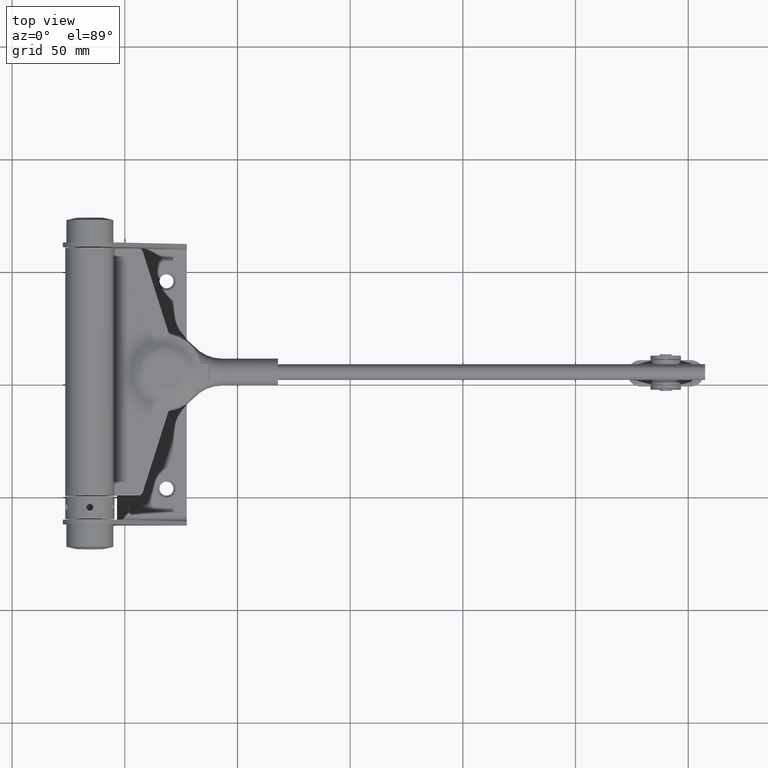
[diagram: clean part render]
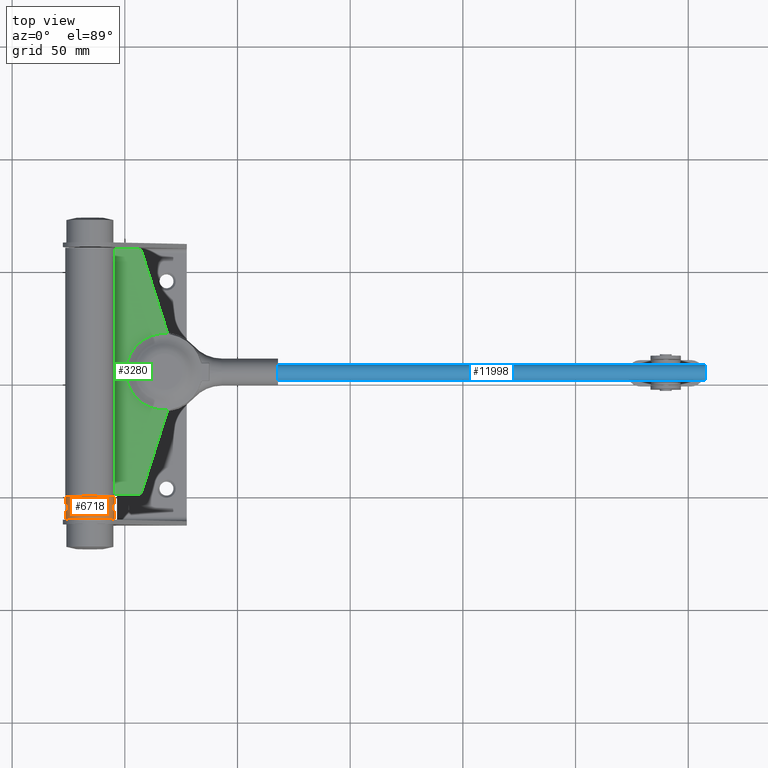
[diagram: same view with three faces highlighted in distinct colors, each labeled with its STEP entity id]
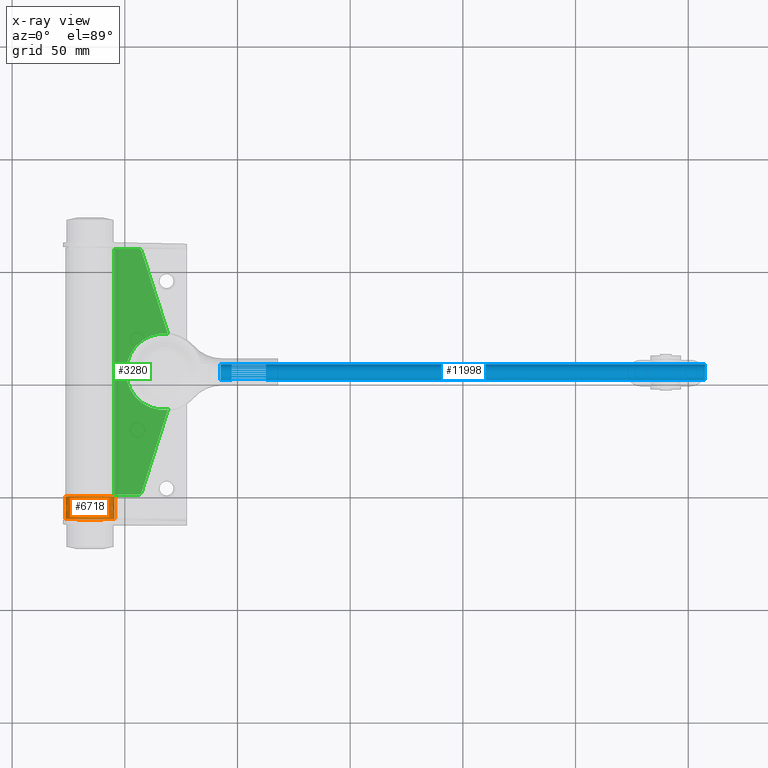
[diagram: x-ray of the same camera — body ghosted, the three highlighted faces saturated]
A machine part, top view with three faces highlighted in distinct colors.
The next image is the same camera in x-ray (body ghosted, the three faces saturated) — at least one of them is partly hidden behind the body in this view.
Their STEP definitions:

[orange] entity #6718 — the highlighted cylindrical surface (bore or boss wall) has radius 11 mm, axis along (0, 1, 0).
#156 = CARTESIAN_POINT ( 'NONE',  ( 5.191715796553792117, -0.09922106720705439753, -9.697736183657182707 ) ) ;
#167 = CARTESIAN_POINT ( 'NONE',  ( 10.43162004397093412, -1.500054600960704976, 3.491546571518214126 ) ) ;
#231 = CARTESIAN_POINT ( 'NONE',  ( 7.507420032056269399, -0.6654642516021292975, -8.039905768890871940 ) ) ;
#328 = CARTESIAN_POINT ( 'NONE',  ( 1.302460655520604860, -0.7504703599725630614, 10.92275567198693231 ) ) ;
#377 = CARTESIAN_POINT ( 'NONE',  ( 5.200397838848361154, -0.1967606968004345924, -9.693102352215765549 ) ) ;
#388 = CARTESIAN_POINT ( 'NONE',  ( 10.64816999410571086, 1.348456892399368057, 2.761293646733665064 ) ) ;
#511 = CARTESIAN_POINT ( 'NONE',  ( -5.234719932667456277, -0.3904336888679598161, -9.674610295123361681 ) ) ;
#861 = B_SPLINE_CURVE_WITH_KNOTS ( 'NONE', 3,
 ( #11095, #17929, #10622, #12430, #5628, #21396, #1586, #14232, #7053, #18338, #3790, #23211, #5702, #167, #12792, #14640, #20186, #2039, #3865, #16779, #18570, #13259, #22327, #15035, #15107, #13033, #5765, #16614, #7609, #11315, #14957, #7928, #7841, #14793, #9586, #6097, #22092, #2358, #12953, #9433, #5930, #388, #20576, #22248, #11384, #4273, #20332, #22169, #11240, #2203 ),
 .UNSPECIFIED., .T., .F.,
 ( 4, 2, 2, 2, 2, 2, 2, 2, 2, 2, 2, 2, 2, 2, 2, 2, 2, 2, 2, 2, 2, 2, 2, 2, 4 ),
 ( 0.000000000000000000, 0.0002934112971071087045, 0.0005868225942142170836, 0.0008802338913213254628, 0.001173645188428433734, 0.001760467782642649625, 0.002347290376856865299, 0.002640701673963972377, 0.002934112971071079455, 0.003520935565285295780, 0.003814346862392403725, 0.004107758159499512104, 0.004401169456606620484, 0.004694580753713728863, 0.005281403347927945621, 0.005868225942142162380, 0.006161637239249270759, 0.006455048536356379138, 0.007041871130570599366, 0.007335282427677707745, 0.007628693724784816124, 0.007922105021891926238, 0.008215516318999034617, 0.008802338913213251376, 0.009389161507427469869 ),
 .UNSPECIFIED. ) ;
#895 = EDGE_LOOP ( 'NONE', ( #8674 ) ) ;
#998 = EDGE_LOOP ( 'NONE', ( #19027 ) ) ;
#1009 = DIRECTION ( 'NONE',  ( -0.000000000000000000, 1.000000000000000000, -0.000000000000000000 ) ) ;
#1055 = CARTESIAN_POINT ( 'NONE',  ( -7.618766779678497691, -1.355252715606880543E-16, -7.934380426779859441 ) ) ;
#1101 = CARTESIAN_POINT ( 'NONE',  ( 1.734723475976807094E-15, 4.999999999999997335, 0.000000000000000000 ) ) ;
#1263 = CARTESIAN_POINT ( 'NONE',  ( -9.918137013876709318, 0.3955845421627410263, 4.757759455030100781 ) ) ;
#1346 = CARTESIAN_POINT ( 'NONE',  ( -10.79936843061965313, -0.6654642516021228582, 2.091669622598185896 ) ) ;
#1410 = VERTEX_POINT ( 'NONE', #10317 ) ;
#1435 = CARTESIAN_POINT ( 'NONE',  ( -10.39999180744122143, 1.490434260984158099, 3.584604037679150146 ) ) ;
#1508 = CARTESIAN_POINT ( 'NONE',  ( -10.67175748062234497, -1.310826343423887375, 2.673333922292947751 ) ) ;
#1581 = CARTESIAN_POINT ( 'NONE',  ( -10.82061332901179540, 0.3929074165688718479, 1.979898828246633880 ) ) ;
#1586 = CARTESIAN_POINT ( 'NONE',  ( 10.79050706957852412, -0.7516487550839683340, 2.137278101710006428 ) ) ;
#1674 = CARTESIAN_POINT ( 'NONE',  ( -0.9155106826520545971, 1.192215103256997422, 10.96213776218510461 ) ) ;
#1752 = CARTESIAN_POINT ( 'NONE',  ( -0.6654692299742590578, 1.347889999444485065, 10.98022825270610348 ) ) ;
#1832 = CARTESIAN_POINT ( 'NONE',  ( -0.09851459464985867776, 1.499962747906386840, 10.99999492016941005 ) ) ;
#1915 = CARTESIAN_POINT ( 'NONE',  ( 1.130516797368213533, -0.9906952745501896862, 10.94197156844076702 ) ) ;
#1954 = VERTEX_POINT ( 'NONE', #15612 ) ;
#2032 = CARTESIAN_POINT ( 'NONE',  ( 6.993379004750342354, 1.347265181280678625, -8.491226015405500149 ) ) ;
#2039 = CARTESIAN_POINT ( 'NONE',  ( 10.20497941564840261, -1.310826343423886042, 4.109929088377749729 ) ) ;
#2053 = CARTESIAN_POINT ( 'NONE',  ( 1.128859521965071444, 0.9925904746393366951, 10.94214375252337490 ) ) ;
#2138 = CARTESIAN_POINT ( 'NONE',  ( 0.1953226422279473740, 1.500074180597992912, 11.00001011553537289 ) ) ;
#2203 = CARTESIAN_POINT ( 'NONE',  ( 10.82742360187844533, -1.084202172485504434E-16, 1.940849851350075372 ) ) ;
#2233 = EDGE_LOOP ( 'NONE', ( #4261 ) ) ;
#2249 = CARTESIAN_POINT ( 'NONE',  ( -5.840246068389841838, -1.310826343423883822, -9.323338878639892968 ) ) ;
#2346 = CARTESIAN_POINT ( 'NONE',  ( 6.148529388612073987, 1.452431181521820269, -9.121666627276168171 ) ) ;
#2358 = CARTESIAN_POINT ( 'NONE',  ( 10.49187094668844367, 1.500086629875221123, 3.306127493897090819 ) ) ;
#2545 = CARTESIAN_POINT ( 'NONE',  ( -7.611676845475818354, -0.1967606968004345924, -7.941205607014395262 ) ) ;
#2678 = CARTESIAN_POINT ( 'NONE',  ( -9.921367618360731555, -0.3886218608046736467, 4.750456343781358726 ) ) ;
#2700 = CARTESIAN_POINT ( 'NONE',  ( -5.914562872713551300, 1.347265181280679514, -9.275031815228480525 ) ) ;
#3078 = CARTESIAN_POINT ( 'NONE',  ( -10.82567372722415300, -0.1980102255760644303, 1.950683338643560472 ) ) ;
#3158 = CARTESIAN_POINT ( 'NONE',  ( -10.71020245703200757, -1.200862300451582820, 2.512235011411056096 ) ) ;
#3237 = CARTESIAN_POINT ( 'NONE',  ( -9.982602904303039537, 0.7563316221577113252, 4.620969174638593024 ) ) ;
#3341 = CARTESIAN_POINT ( 'NONE',  ( -1.198964913299075841, -0.9223237274877774672, 10.93534439137421366 ) ) ;
#3391 = CARTESIAN_POINT ( 'NONE',  ( -10.20562548385357360, 1.302457116837337781, 4.105106537322852134 ) ) ;
#3488 = CARTESIAN_POINT ( 'NONE',  ( -1.460375320810246347, -0.3942881640580507274, 10.90288934863977843 ) ) ;
#3628 = CARTESIAN_POINT ( 'NONE',  ( 5.259951325779389286, -0.4839463892377863785, -9.660970630368273859 ) ) ;
#3781 = CARTESIAN_POINT ( 'NONE',  ( 5.191715796553792117, -1.219727444046192488E-16, -9.697736183657184483 ) ) ;
#3790 = CARTESIAN_POINT ( 'NONE',  ( 10.67171365346788292, -1.310680290924018720, 2.673420108965852027 ) ) ;
#3854 = CARTESIAN_POINT ( 'NONE',  ( 6.143368989296050131, -1.460375467965762342, -9.126426729119744508 ) ) ;
#3865 = CARTESIAN_POINT ( 'NONE',  ( 10.14139049093541622, -1.200862300451586373, 4.262858235214821434 ) ) ;
#3881 = CARTESIAN_POINT ( 'NONE',  ( 1.802486111757151122E-15, -1.499999999999994671, 11.00000000000000355 ) ) ;
#4060 = CARTESIAN_POINT ( 'NONE',  ( -7.473443048979287795, -0.7516487550839699994, -8.071595226244703269 ) ) ;
#4087 = CARTESIAN_POINT ( 'NONE',  ( 5.191715796553792117, -1.219727444046192488E-16, -9.697736183657184483 ) ) ;
#4151 = CARTESIAN_POINT ( 'NONE',  ( -7.345490451056918779, -0.9916825642055963064, -8.188320375931157358 ) ) ;
#4261 = ORIENTED_EDGE ( 'NONE', *, *, #22550, .T. ) ;
#4273 = CARTESIAN_POINT ( 'NONE',  ( 10.77045862837951518, 0.9234156699492931386, 2.239759008106761762 ) ) ;
#4317 = CARTESIAN_POINT ( 'NONE',  ( -7.562714722497001496, -0.4839463892377865450, -7.987915090718844091 ) ) ;
#4693 = CARTESIAN_POINT ( 'NONE',  ( -6.775220413848130008, 1.452431181521819603, -8.666348945522887703 ) ) ;
#4783 = CARTESIAN_POINT ( 'NONE',  ( -7.240986333037261247, 1.130510068122147604, -8.280878081144242842 ) ) ;
#4999 = CARTESIAN_POINT ( 'NONE',  ( -10.11317089266316671, 1.130510068122144940, 4.327655181018683628 ) ) ;
#5083 = CARTESIAN_POINT ( 'NONE',  ( -10.60104970929285884, -1.423632055747013236, 2.937009628419212426 ) ) ;
#5097 = VERTEX_POINT ( 'NONE', #13932 ) ;
#5156 = CARTESIAN_POINT ( 'NONE',  ( -10.64877988868550318, 1.347265181280680402, 2.758941106857715653 ) ) ;
#5178 = CARTESIAN_POINT ( 'NONE',  ( -0.9911400898390937408, 1.130231421369405131, 10.95548148214987272 ) ) ;
#5321 = CARTESIAN_POINT ( 'NONE',  ( -1.423632848345541824, 0.4826397892659986533, 10.90755271237982349 ) ) ;
#5483 = CARTESIAN_POINT ( 'NONE',  ( -0.4839486361568829942, -1.423185392575385899, 10.98972522702108101 ) ) ;
#5518 = FACE_OUTER_BOUND ( 'NONE', #10934, .T. ) ;
#5565 = CARTESIAN_POINT ( 'NONE',  ( 1.490434331210564567, -0.1953860087754974995, 10.89857665632106887 ) ) ;
#5628 = CARTESIAN_POINT ( 'NONE',  ( 10.81354342099870891, -0.4839463892377851018, 2.017106876836803675 ) ) ;
#5689 = CARTESIAN_POINT ( 'NONE',  ( 6.623921259609097945, -1.490291314580465931, -8.782535756916491465 ) ) ;
#5702 = CARTESIAN_POINT ( 'NONE',  ( 10.52240335422114725, -1.499890092889741400, 3.212071677671953118 ) ) ;
#5765 = CARTESIAN_POINT ( 'NONE',  ( 9.900389022253918370, -0.09851510423734066713, 4.793985524534121190 ) ) ;
#5779 = CARTESIAN_POINT ( 'NONE',  ( 1.460549597430521596, 0.3943136771651463146, 10.90287073325300327 ) ) ;
#5930 = CARTESIAN_POINT ( 'NONE',  ( 10.60107048254503326, 1.423599352457328049, 2.936932319781555556 ) ) ;
#5980 = CARTESIAN_POINT ( 'NONE',  ( -5.517167974941250996, -0.9911323540295565726, -9.516606427297297444 ) ) ;
#6065 = CARTESIAN_POINT ( 'NONE',  ( -7.583823662643655261, -0.3886218608046749234, -7.967809582737003460 ) ) ;
#6090 = CYLINDRICAL_SURFACE ( 'NONE', #16833, 11.00000000000000000 ) ;
#6097 = CARTESIAN_POINT ( 'NONE',  ( 10.33447876204744098, 1.460549766408085981, 3.772482645674902990 ) ) ;
#6297 = CARTESIAN_POINT ( 'NONE',  ( -5.226749090433791878, 0.3929074165688670184, -9.679192431795620166 ) ) ;
#6379 = EDGE_LOOP ( 'NONE', ( #10032 ) ) ;
#6428 = CARTESIAN_POINT ( 'NONE',  ( -10.14060134787140299, -1.198958018750907017, 4.264678942825545604 ) ) ;
#6540 = CARTESIAN_POINT ( 'NONE',  ( -7.396986753916988455, 0.9234156699492940268, -8.142719843050402417 ) ) ;
#6664 = CARTESIAN_POINT ( 'NONE',  ( -10.14344625212994444, 1.193704798455211602, 4.256429175917683772 ) ) ;
#6718 = ADVANCED_FACE ( 'NONE', ( #17231, #9564, #11238, #22866, #13134, #5518, #17446 ), #6090, .T. ) ;
#6830 = CARTESIAN_POINT ( 'NONE',  ( -9.900372618753632281, 1.897353801849632760E-16, 4.794019400235381312 ) ) ;
#6971 = CARTESIAN_POINT ( 'NONE',  ( -10.76854019030190024, -0.9155028073419344548, 2.245335404296280313 ) ) ;
#6998 = CARTESIAN_POINT ( 'NONE',  ( -0.9916901964606196218, -1.129645977572705906, 10.95542646406630993 ) ) ;
#7053 = CARTESIAN_POINT ( 'NONE',  ( 10.75560056494222927, -0.9916825642055926426, 2.306919381528580448 ) ) ;
#7281 = CARTESIAN_POINT ( 'NONE',  ( 7.188081110935033990, -1.200862300451581932, -8.327739871405276162 ) ) ;
#7309 = CARTESIAN_POINT ( 'NONE',  ( 0.3929095347849420050, 1.460757429368037430, 10.99446764604949323 ) ) ;
#7364 = CARTESIAN_POINT ( 'NONE',  ( 5.840314493451181477, -1.310680290924018276, -9.323270563392430432 ) ) ;
#7439 = CARTESIAN_POINT ( 'NONE',  ( 7.480571517709965867, 0.7540569334361714171, -8.065154800405652580 ) ) ;
#7609 = CARTESIAN_POINT ( 'NONE',  ( 9.917815405005093510, 0.3929074165688645204, 4.758425136358007457 ) ) ;
#7841 = CARTESIAN_POINT ( 'NONE',  ( 10.14269542414140801, 1.192215286157108700, 4.258214301208017361 ) ) ;
#7918 = CARTESIAN_POINT ( 'NONE',  ( 6.069099558319106080, 1.423599352457329159, -9.174655163987134543 ) ) ;
#7928 = CARTESIAN_POINT ( 'NONE',  ( 10.11242164522266229, 1.128852651718869948, 4.329404587279015004 ) ) ;
#7971 = CARTESIAN_POINT ( 'NONE',  ( -5.463102790937089281, -0.9155028073419336776, -9.547643520973597475 ) ) ;
#8012 = DIRECTION ( 'NONE',  ( 0.000000000000000000, 0.000000000000000000, 1.000000000000000000 ) ) ;
#8190 = CARTESIAN_POINT ( 'NONE',  ( -9.900372618753632281, 1.897353801849632760E-16, 4.794019400235381312 ) ) ;
#8290 = CARTESIAN_POINT ( 'NONE',  ( 1.734723475976807094E-15, -4.999999999999997335, 11.00000000000000000 ) ) ;
#8309 = CARTESIAN_POINT ( 'NONE',  ( -5.456912513162738065, 0.9212460349021189820, -9.552034771092985821 ) ) ;
#8536 = CARTESIAN_POINT ( 'NONE',  ( 1.734723475976807094E-15, -1.499999999999994449, 11.00000000000000355 ) ) ;
#8674 = ORIENTED_EDGE ( 'NONE', *, *, #19964, .T. ) ;
#8719 = AXIS2_PLACEMENT_3D ( 'NONE', #1101, #1009, #8012 ) ;
#8757 = CARTESIAN_POINT ( 'NONE',  ( -10.72588113288015776, 1.128852651718871281, 2.441370421391579004 ) ) ;
#8992 = CARTESIAN_POINT ( 'NONE',  ( -1.310829227117657148, 0.7552571413888262697, 10.92188048727257943 ) ) ;
#9130 = CARTESIAN_POINT ( 'NONE',  ( 7.392156981468405164, -0.9155028073419364532, -8.146103612725637433 ) ) ;
#9207 = CARTESIAN_POINT ( 'NONE',  ( 7.472763403791653936, -0.7531955497149609435, -8.072223734441827503 ) ) ;
#9233 = CARTESIAN_POINT ( 'NONE',  ( 1.301112446651470966, 0.7527893807653758262, 10.92291670360245348 ) ) ;
#9356 = CARTESIAN_POINT ( 'NONE',  ( 6.850098427605757934, -1.423632055747011904, -8.607231379975704755 ) ) ;
#9433 = CARTESIAN_POINT ( 'NONE',  ( 10.57522055683797291, 1.452431181521819381, 3.028848935820647625 ) ) ;
#9480 = ORIENTED_EDGE ( 'NONE', *, *, #22819, .T. ) ;
#9496 = CARTESIAN_POINT ( 'NONE',  ( 5.843603372935849194, 1.302457116837340445, -9.319817102243215245 ) ) ;
#9564 = FACE_BOUND ( 'NONE', #998, .T. ) ;
#9586 = CARTESIAN_POINT ( 'NONE',  ( 10.23670879385913324, 1.347265181280678403, 4.027165531550585875 ) ) ;
#9648 = CARTESIAN_POINT ( 'NONE',  ( 5.359957865527233523, 0.7563316221577118803, -9.606069359406705033 ) ) ;
#9698 = CARTESIAN_POINT ( 'NONE',  ( -5.191649720360737241, 0.1953220818559212313, -9.697771557770991535 ) ) ;
#9779 = CARTESIAN_POINT ( 'NONE',  ( -6.781342190811100679, -1.460375467965763230, -8.662912066491324836 ) ) ;
#9865 = CARTESIAN_POINT ( 'NONE',  ( -7.589771022498330133, 0.3955845421627401937, -7.962480309803227740 ) ) ;
#9921 = CARTESIAN_POINT ( 'NONE',  ( -9.985964145444786055, -0.7516487550839664467, 4.613406614267189454 ) ) ;
#10032 = ORIENTED_EDGE ( 'NONE', *, *, #10906, .T. ) ;
#10034 = AXIS2_PLACEMENT_3D ( 'NONE', #17914, #19939, #14297 ) ;
#10105 = CARTESIAN_POINT ( 'NONE',  ( -6.304093887365737281, 1.499825000284431775, -9.016525945770228034 ) ) ;
#10155 = CARTESIAN_POINT ( 'NONE',  ( -9.900372618753634057, -0.09922106720705460570, 4.794019400235382200 ) ) ;
#10300 = CARTESIAN_POINT ( 'NONE',  ( -10.81871858378077356, -0.3904336888679587614, 1.988895507795592099 ) ) ;
#10317 = CARTESIAN_POINT ( 'NONE',  ( 1.734723475976807094E-15, 4.999999999999997335, 11.00000000000000000 ) ) ;
#10384 = CARTESIAN_POINT ( 'NONE',  ( -10.57817861016031635, 1.460549766408085759, 3.022451635125785074 ) ) ;
#10622 = CARTESIAN_POINT ( 'NONE',  ( 10.82569946490557733, -0.1967606968004337875, 1.950538896913549536 ) ) ;
#10733 = CARTESIAN_POINT ( 'NONE',  ( -0.9146204051370453447, -1.192925387821238026, 10.96221452372085459 ) ) ;
#10806 = CARTESIAN_POINT ( 'NONE',  ( -0.7532021306663971849, 1.300854800830486324, 10.97448452901247862 ) ) ;
#10876 = CARTESIAN_POINT ( 'NONE',  ( -0.3904348020054948520, 1.451615636338489113, 10.99349008195833832 ) ) ;
#10906 = EDGE_CURVE ( 'NONE', #1954, #1954, #15396, .T. ) ;
#10919 = B_SPLINE_CURVE_WITH_KNOTS ( 'NONE', 3,
 ( #3781, #156, #377, #18172, #3628, #20321, #22162, #14475, #21997, #20027, #7364, #3854, #12942, #10928, #5689, #12718, #9356, #16302, #7281, #20101, #9130, #9207, #231, #21932, #14785, #14631, #16454, #18327, #22082, #7439, #11155, #11085, #12866, #20182, #2032, #14704, #16521, #18412, #20246, #2346, #7918, #17011, #9496, #20643, #20409, #22531, #9648, #16691, #14858, #4087 ),
 .UNSPECIFIED., .T., .F.,
 ( 4, 2, 2, 2, 2, 2, 2, 2, 2, 2, 2, 2, 2, 2, 2, 2, 2, 2, 2, 2, 2, 2, 2, 2, 4 ),
 ( 0.000000000000000000, 0.0002934112971071089213, 0.0005868225942142178426, 0.0008802338913213267639, 0.001173645188428435685, 0.001760467782642654395, 0.002347290376856872671, 0.002640701673963980617, 0.002934112971071088562, 0.003520935565285307923, 0.003814346862392416736, 0.004107758159499525982, 0.004401169456606635229, 0.004694580753713744475, 0.005281403347927962968, 0.005868225942142182329, 0.006161637239249289841, 0.006455048536356398220, 0.007041871130570617580, 0.007335282427677723358, 0.007628693724784830002, 0.007922105021891936646, 0.008215516318999043291, 0.008802338913213258315, 0.009389161507427471604 ),
 .UNSPECIFIED. ) ;
#10928 = CARTESIAN_POINT ( 'NONE',  ( 6.544205991239731901, -1.500054600960704088, -8.842112991082993645 ) ) ;
#10934 = EDGE_LOOP ( 'NONE', ( #15728 ) ) ;
#10954 = CARTESIAN_POINT ( 'NONE',  ( 0.7563379066569094755, -1.310005723733510985, 10.97545342880767016 ) ) ;
#11085 = CARTESIAN_POINT ( 'NONE',  ( 7.242418587068684133, 1.128852651718869282, -8.279624908219117785 ) ) ;
#11095 = CARTESIAN_POINT ( 'NONE',  ( 10.82742360187844533, -1.084202172485504434E-16, 1.940849851350075372 ) ) ;
#11155 = CARTESIAN_POINT ( 'NONE',  ( 7.398246209541301077, 0.9212460349021196482, -8.141573279624104487 ) ) ;
#11238 = FACE_BOUND ( 'NONE', #6379, .T. ) ;
#11240 = CARTESIAN_POINT ( 'NONE',  ( 10.82742360187845243, 0.1984421344141092114, 1.940849851350075594 ) ) ;
#11256 = CARTESIAN_POINT ( 'NONE',  ( 1.423600298622414773, -0.4827192565959946280, 10.90755685295867039 ) ) ;
#11288 = CARTESIAN_POINT ( 'NONE',  ( -7.507394322397938247, -0.6655396847754703193, -8.039929847855258771 ) ) ;
#11315 = CARTESIAN_POINT ( 'NONE',  ( 9.982041754464503924, 0.7540569334361674203, 4.622176391939986750 ) ) ;
#11384 = CARTESIAN_POINT ( 'NONE',  ( 10.72545901159244153, 1.130510068122144496, 2.443226117382102824 ) ) ;
#11425 = CARTESIAN_POINT ( 'NONE',  ( -5.191748978901890688, -0.09851510423733833566, -9.697718419374716348 ) ) ;
#11583 = CARTESIAN_POINT ( 'NONE',  ( -6.069166663914760562, -1.423632055747012126, -9.174611517767445434 ) ) ;
#11813 = CARTESIAN_POINT ( 'NONE',  ( -7.479596790665397954, 0.7563316221577112142, -8.066061536278244404 ) ) ;
#11887 = CARTESIAN_POINT ( 'NONE',  ( -6.850160674396876814, 1.423599352457328493, -8.607181046185294448 ) ) ;
#11966 = CARTESIAN_POINT ( 'NONE',  ( -5.702697399548497970, 1.192215286157109588, -9.406694524172358740 ) ) ;
#12014 = CARTESIAN_POINT ( 'NONE',  ( -9.966340101453594613, -0.6655396847754667666, 4.655481334144163874 ) ) ;
#12098 = CARTESIAN_POINT ( 'NONE',  ( -10.02998138122564953, 0.9234156699492941378, 4.518713641325036612 ) ) ;
#12176 = CARTESIAN_POINT ( 'NONE',  ( -10.33446895256094500, -1.460375467965762120, 3.772452630476565982 ) ) ;
#12427 = CARTESIAN_POINT ( 'NONE',  ( -10.75572922077548377, -0.9911323540295576828, 2.306345439250122809 ) ) ;
#12430 = CARTESIAN_POINT ( 'NONE',  ( 10.81880319122902279, -0.3886218608046739798, 1.988433655489234786 ) ) ;
#12512 = CARTESIAN_POINT ( 'NONE',  ( -1.490291506661348908, 0.1966183384481407503, 10.89859646344575239 ) ) ;
#12537 = CIRCLE ( 'NONE', #8719, 11.00000000000000000 ) ;
#12656 = CARTESIAN_POINT ( 'NONE',  ( -0.1980093425005734764, 1.490107241295724805, 10.99863881655433850 ) ) ;
#12718 = CARTESIAN_POINT ( 'NONE',  ( 6.776615128851768866, -1.451978390107856676, -8.665261367693149808 ) ) ;
#12738 = CARTESIAN_POINT ( 'NONE',  ( 1.192220905689032051, 0.9155297715872047215, 10.93533777369070847 ) ) ;
#12792 = CARTESIAN_POINT ( 'NONE',  ( 10.39959209983132915, -1.490291314580466597, 3.585770674784422241 ) ) ;
#12817 = DIRECTION ( 'NONE',  ( 0.000000000000000000, 0.000000000000000000, 1.000000000000000000 ) ) ;
#12866 = CARTESIAN_POINT ( 'NONE',  ( 7.184067713773785613, 1.192215286157107590, -8.330415991163020450 ) ) ;
#12942 = CARTESIAN_POINT ( 'NONE',  ( 6.306463157979280254, -1.499890092889740734, -9.014815541566941093 ) ) ;
#12953 = CARTESIAN_POINT ( 'NONE',  ( 10.52074750223600219, 1.490434260984158987, 3.212956223789097621 ) ) ;
#13033 = CARTESIAN_POINT ( 'NONE',  ( 9.904736919230009207, -0.1980102255760679275, 4.785035391385826564 ) ) ;
#13134 = FACE_BOUND ( 'NONE', #2233, .T. ) ;
#13146 = CARTESIAN_POINT ( 'NONE',  ( -5.200527257715965135, -0.1980102255760640972, -9.693033239276866553 ) ) ;
#13259 = CARTESIAN_POINT ( 'NONE',  ( 9.986351870348084248, -0.7531955497149624978, 4.612566013568705436 ) ) ;
#13454 = CARTESIAN_POINT ( 'NONE',  ( -5.358794301245392688, 0.7540569334361679754, -9.606716183120008523 ) ) ;
#13590 = CARTESIAN_POINT ( 'NONE',  ( -9.933966071501725281, -0.4839463892377839915, 4.724167605055870744 ) ) ;
#13694 = CARTESIAN_POINT ( 'NONE',  ( -7.057900035143512163, 1.302457116837339335, -8.437578935534386204 ) ) ;
#13783 = CARTESIAN_POINT ( 'NONE',  ( -6.622935238232209976, 1.490434260984158543, -8.783276412135295530 ) ) ;
#13932 = CARTESIAN_POINT ( 'NONE',  ( 10.82742360187844355, 0.000000000000000000, 1.940849851350075150 ) ) ;
#13999 = CARTESIAN_POINT ( 'NONE',  ( -10.20499461799090035, -1.310680290924016500, 4.109833600939638565 ) ) ;
#14160 = CARTESIAN_POINT ( 'NONE',  ( -10.82743682599330626, 0.1953220818559250893, 1.940776077953774159 ) ) ;
#14185 = CARTESIAN_POINT ( 'NONE',  ( -0.6655446615906072116, -1.347855054338672254, 10.98022391171008216 ) ) ;
#14229 = CARTESIAN_POINT ( 'NONE',  ( -10.33584588564230700, 1.452431181521818493, 3.765568420576262731 ) ) ;
#14232 = CARTESIAN_POINT ( 'NONE',  ( 10.76868639095038560, -0.9146133221466113961, 2.244636700233039850 ) ) ;
#14297 = DIRECTION ( 'NONE',  ( 0.000000000000000000, 0.000000000000000000, 1.000000000000000000 ) ) ;
#14475 = CARTESIAN_POINT ( 'NONE',  ( 5.462483462369747578, -0.9146133221466128393, -9.547998477482607882 ) ) ;
#14564 = EDGE_CURVE ( 'NONE', #19618, #19618, #18060, .T. ) ;
#14579 = CARTESIAN_POINT ( 'NONE',  ( 1.499824784090836083, 0.1996650407121646209, 10.89727147721399803 ) ) ;
#14631 = CARTESIAN_POINT ( 'NONE',  ( 7.611571122535434775, -0.1980102255760667063, -7.941307334599110312 ) ) ;
#14640 = CARTESIAN_POINT ( 'NONE',  ( 10.33524252829879053, -1.451978390107857786, 3.767230953400937832 ) ) ;
#14704 = CARTESIAN_POINT ( 'NONE',  ( 6.781373768259104651, 1.460549766408084427, -8.662912120660998028 ) ) ;
#14730 = CARTESIAN_POINT ( 'NONE',  ( 1.348459399905603595, -0.6643138849464458318, 10.91710087695308040 ) ) ;
#14771 = EDGE_LOOP ( 'NONE', ( #9480 ) ) ;
#14785 = CARTESIAN_POINT ( 'NONE',  ( 7.583483743805753186, -0.3904336888679620921, -7.968133498091432898 ) ) ;
#14793 = CARTESIAN_POINT ( 'NONE',  ( 10.20475644132816129, 1.301108913038394821, 4.107262528142425317 ) ) ;
#14809 = CARTESIAN_POINT ( 'NONE',  ( 1.452431637780416063, -0.3873145048288275105, 10.90370624911236597 ) ) ;
#14817 = CARTESIAN_POINT ( 'NONE',  ( 1.734723475976807094E-15, 4.999999999999997335, 0.000000000000000000 ) ) ;
#14858 = CARTESIAN_POINT ( 'NONE',  ( 5.191715796553791229, 0.1984421344141073795, -9.697736183657189812 ) ) ;
#14891 = CARTESIAN_POINT ( 'NONE',  ( 0.7540624146361503133, 1.311327588671851840, 10.97561326748474109 ) ) ;
#14920 = CARTESIAN_POINT ( 'NONE',  ( -6.305783622589920867, -1.490291314580465709, -9.013676279970050942 ) ) ;
#14957 = CARTESIAN_POINT ( 'NONE',  ( 10.02928012779930000, 0.9212460349021179828, 4.520265762387386310 ) ) ;
#15005 = CARTESIAN_POINT ( 'NONE',  ( -7.062200791526457522, -1.310680290924018943, -8.435518203453703734 ) ) ;
#15035 = CARTESIAN_POINT ( 'NONE',  ( 9.933964020614926227, -0.4839264239596263173, 4.724171794875021924 ) ) ;
#15107 = CARTESIAN_POINT ( 'NONE',  ( 9.921570639471669395, -0.3904336888679624251, 4.750032966406307899 ) ) ;
#15234 = CARTESIAN_POINT ( 'NONE',  ( -5.698912050486497627, -1.200862300451579268, -9.409684525210915140 ) ) ;
#15274 = VERTEX_POINT ( 'NONE', #8536 ) ;
#15382 = CARTESIAN_POINT ( 'NONE',  ( -6.143359282846398095, 1.460549766408085537, -9.126456777796777331 ) ) ;
#15396 = B_SPLINE_CURVE_WITH_KNOTS ( 'NONE', 3,
 ( #22368, #22293, #2545, #6065, #4317, #11288, #4060, #18623, #4151, #16828, #15005, #9779, #20616, #16988, #14920, #18707, #11583, #2249, #15234, #5980, #7971, #22508, #16745, #20468, #511, #13146, #11425, #9698, #6297, #13454, #8309, #22897, #11966, #18943, #2700, #15382, #10105, #15553, #13783, #4693, #11887, #17311, #13694, #19029, #4783, #6540, #11813, #9865, #19111, #1055 ),
 .UNSPECIFIED., .T., .F.,
 ( 4, 2, 2, 2, 2, 2, 2, 2, 2, 2, 2, 2, 2, 2, 2, 2, 2, 2, 2, 2, 2, 2, 2, 2, 4 ),
 ( 0.000000000000000000, 0.0002934112971071071324, 0.0005868225942142143731, 0.0008802338913213215597, 0.001173645188428428529, 0.001760467782642646589, 0.002347290376856864431, 0.002640701673963974545, 0.002934112971071085093, 0.003520935565285300117, 0.003814346862392408062, 0.004107758159499515574, 0.004401169456606623086, 0.004694580753713730598, 0.005281403347927946489, 0.005868225942142161512, 0.006161637239249269024, 0.006455048536356378271, 0.007041871130570596764, 0.007335282427677706010, 0.007628693724784816992, 0.007922105021891926238, 0.008215516318999038087, 0.008802338913213258315, 0.009389161507427478542 ),
 .UNSPECIFIED. ) ;
#15444 = CARTESIAN_POINT ( 'NONE',  ( 5.191715796553791229, 0.000000000000000000, -9.697736183657184483 ) ) ;
#15553 = CARTESIAN_POINT ( 'NONE',  ( -6.544808915548391504, 1.500086629875221123, -8.841680339552299372 ) ) ;
#15612 = CARTESIAN_POINT ( 'NONE',  ( -7.618766779678497691, 0.000000000000000000, -7.934380426779859441 ) ) ;
#15728 = ORIENTED_EDGE ( 'NONE', *, *, #17815, .F. ) ;
#15763 = CARTESIAN_POINT ( 'NONE',  ( -10.79248853459883506, 0.7540569334361730824, 2.127877678963881802 ) ) ;
#15851 = CARTESIAN_POINT ( 'NONE',  ( -10.77080361631044347, 0.9212460349021233119, 2.238091129367870469 ) ) ;
#15887 = VERTEX_POINT ( 'NONE', #15444 ) ;
#16008 = CARTESIAN_POINT ( 'NONE',  ( -10.52110986407207172, -1.490291314580465709, 3.211777452306329828 ) ) ;
#16039 = CARTESIAN_POINT ( 'NONE',  ( -1.500054661872485262, 0.09710879590426363395, 10.89723983467673385 ) ) ;
#16181 = CARTESIAN_POINT ( 'NONE',  ( -1.451978861620272676, 0.3890821651643225909, 10.90376682771908534 ) ) ;
#16302 = CARTESIAN_POINT ( 'NONE',  ( 7.062286907694512728, -1.310826343423885820, -8.435474237925685514 ) ) ;
#16454 = CARTESIAN_POINT ( 'NONE',  ( 7.618739630932421569, -0.09851510423734213817, -7.934406495603068876 ) ) ;
#16521 = CARTESIAN_POINT ( 'NONE',  ( 6.627153609737886697, 1.499825000284431775, -8.781809318381252893 ) ) ;
#16551 = CARTESIAN_POINT ( 'NONE',  ( 0.9234245866482349019, -1.198110369442060508, 10.96204940545172413 ) ) ;
#16614 = CARTESIAN_POINT ( 'NONE',  ( 9.900339954372945783, 0.1953220818559188998, 4.794086857106414357 ) ) ;
#16643 = DIRECTION ( 'NONE',  ( -0.000000000000000000, 1.000000000000000000, -0.000000000000000000 ) ) ;
#16691 = CARTESIAN_POINT ( 'NONE',  ( 5.227400555143736582, 0.3955845421627425806, -9.678842921240249808 ) ) ;
#16745 = CARTESIAN_POINT ( 'NONE',  ( -5.326484398086387628, -0.6654642516021278542, -9.624448257812325380 ) ) ;
#16779 = CARTESIAN_POINT ( 'NONE',  ( 10.05720356238577473, -0.9911323540295613466, 4.456186358370620937 ) ) ;
#16785 = B_SPLINE_CURVE_WITH_KNOTS ( 'NONE', 3,
 ( #8190, #10155, #22949, #2678, #13590, #12014, #9921, #17282, #20909, #6428, #13999, #12176, #21313, #19482, #16008, #17692, #5083, #1508, #3158, #12427, #6971, #19643, #1346, #23036, #10300, #3078, #17770, #14160, #1581, #15763, #15851, #8757, #17530, #23355, #5156, #10384, #21468, #17612, #1435, #14229, #19717, #21231, #3391, #6664, #4999, #12098, #3237, #1263, #17857, #6830 ),
 .UNSPECIFIED., .T., .F.,
 ( 4, 2, 2, 2, 2, 2, 2, 2, 2, 2, 2, 2, 2, 2, 2, 2, 2, 2, 2, 2, 2, 2, 2, 2, 4 ),
 ( 0.000000000000000000, 0.0002934112971071097887, 0.0005868225942142195773, 0.0008802338913213292575, 0.001173645188428439155, 0.001760467782642656780, 0.002347290376856873539, 0.002640701673963983219, 0.002934112971071092899, 0.003520935565285312693, 0.003814346862392421506, 0.004107758159499531186, 0.004401169456606640433, 0.004694580753713748812, 0.005281403347927968173, 0.005868225942142186666, 0.006161637239249295912, 0.006455048536356405159, 0.007041871130570621917, 0.007335282427677730296, 0.007628693724784839543, 0.007922105021891945320, 0.008215516318999050230, 0.008802338913213263519, 0.009389161507427475073 ),
 .UNSPECIFIED. ) ;
#16828 = CARTESIAN_POINT ( 'NONE',  ( -7.189568848154702430, -1.198958018750910570, -8.326426722158457139 ) ) ;
#16833 = AXIS2_PLACEMENT_3D ( 'NONE', #14817, #16643, #12817 ) ;
#16959 = ORIENTED_EDGE ( 'NONE', *, *, #14564, .T. ) ;
#16988 = CARTESIAN_POINT ( 'NONE',  ( -6.387078312004116576, -1.500054600960704310, -8.956272932374458762 ) ) ;
#17011 = CARTESIAN_POINT ( 'NONE',  ( 5.916611803302485484, 1.348456892399370499, -9.273724796212500010 ) ) ;
#17231 = FACE_BOUND ( 'NONE', #895, .T. ) ;
#17282 = CARTESIAN_POINT ( 'NONE',  ( -10.03141464652446579, -0.9146133221466093977, 4.513725810477147604 ) ) ;
#17311 = CARTESIAN_POINT ( 'NONE',  ( -6.991502801425998115, 1.348456892399369389, -8.492770773105631221 ) ) ;
#17446 = FACE_OUTER_BOUND ( 'NONE', #21670, .T. ) ;
#17530 = CARTESIAN_POINT ( 'NONE',  ( -10.70852853425036244, 1.192215286157108256, 2.516759053437029436 ) ) ;
#17612 = CARTESIAN_POINT ( 'NONE',  ( -10.43139488177107488, 1.500086629875221123, 3.492253683286428156 ) ) ;
#17625 = CARTESIAN_POINT ( 'NONE',  ( -9.900372618753635834, 0.000000000000000000, 4.794019400235383088 ) ) ;
#17692 = CARTESIAN_POINT ( 'NONE',  ( -10.57570964276917458, -1.451978390107856676, 3.027149273963390286 ) ) ;
#17770 = CARTESIAN_POINT ( 'NONE',  ( -10.82741696095131090, -0.09851510423733866872, 1.940886899103634766 ) ) ;
#17815 = EDGE_CURVE ( 'NONE', #1410, #1410, #12537, .T. ) ;
#17857 = CARTESIAN_POINT ( 'NONE',  ( -9.900372618753630505, 0.1984421344141065746, 4.794019400235380424 ) ) ;
#17914 = CARTESIAN_POINT ( 'NONE',  ( 1.734723475976807094E-15, -4.999999999999997335, 0.000000000000000000 ) ) ;
#17929 = CARTESIAN_POINT ( 'NONE',  ( 10.82742360187844355, -0.09922106720705457794, 1.940849851350075150 ) ) ;
#18029 = CARTESIAN_POINT ( 'NONE',  ( -1.200867413996704824, 0.9203501660502425574, 10.93515661468372713 ) ) ;
#18060 = CIRCLE ( 'NONE', #10034, 11.00000000000000000 ) ;
#18110 = CARTESIAN_POINT ( 'NONE',  ( -1.499889969477739671, -0.1967396931214120681, 10.89726250448907408 ) ) ;
#18123 = EDGE_CURVE ( 'NONE', #15887, #15887, #10919, .T. ) ;
#18172 = CARTESIAN_POINT ( 'NONE',  ( 5.234306830161281177, -0.3886218608046746459, -9.674833481799902657 ) ) ;
#18195 = CARTESIAN_POINT ( 'NONE',  ( 1.193710125689403156, -0.9136003810217575571, 10.93517495813068052 ) ) ;
#18327 = CARTESIAN_POINT ( 'NONE',  ( 7.618820841126519028, 0.1953220818559180394, -7.934328515788210190 ) ) ;
#18338 = CARTESIAN_POINT ( 'NONE',  ( 10.71063421196455501, -1.198958018750909238, 2.510298181357225822 ) ) ;
#18355 = CARTESIAN_POINT ( 'NONE',  ( 0.1984417800615779215, -1.499999999999995337, 11.00000000000000711 ) ) ;
#18412 = CARTESIAN_POINT ( 'NONE',  ( 6.386480522088868739, 1.500086629875221345, -8.956712650791409658 ) ) ;
#18512 = CARTESIAN_POINT ( 'NONE',  ( 0.3955856219829526621, -1.460025356266485108, 10.99436842263586378 ) ) ;
#18570 = CARTESIAN_POINT ( 'NONE',  ( 10.03170705565934639, -0.9155028073419386736, 4.513074612430886035 ) ) ;
#18623 = CARTESIAN_POINT ( 'NONE',  ( -7.392685948221706660, -0.9146133221466138385, -8.145624283849484115 ) ) ;
#18707 = CARTESIAN_POINT ( 'NONE',  ( -6.147064049991682211, -1.451978390107856454, -9.122657000036660691 ) ) ;
#18943 = CARTESIAN_POINT ( 'NONE',  ( -5.841633043156134519, 1.301108913038395043, -9.321050525075911253 ) ) ;
#19027 = ORIENTED_EDGE ( 'NONE', *, *, #18123, .T. ) ;
#19029 = CARTESIAN_POINT ( 'NONE',  ( -7.182601977342327082, 1.193704798455212046, -8.331681705065935972 ) ) ;
#19111 = CARTESIAN_POINT ( 'NONE',  ( -7.618766779678499468, 0.1984421344141110710, -7.934380426779861217 ) ) ;
#19482 = CARTESIAN_POINT ( 'NONE',  ( -10.49163747686554693, -1.500054600960703866, 3.306831906354939843 ) ) ;
#19618 = VERTEX_POINT ( 'NONE', #8290 ) ;
#19643 = CARTESIAN_POINT ( 'NONE',  ( -10.79032665292079152, -0.7531955497149581680, 2.138186060940658884 ) ) ;
#19717 = CARTESIAN_POINT ( 'NONE',  ( -10.30273168349423685, 1.423599352457327383, 3.855124730120790488 ) ) ;
#19819 = CARTESIAN_POINT ( 'NONE',  ( -0.1967608052062565505, -1.490252408965832442, 10.99865875903122081 ) ) ;
#19893 = CARTESIAN_POINT ( 'NONE',  ( -0.09922089003078606029, -1.499999999999994449, 11.00000000000000178 ) ) ;
#19939 = DIRECTION ( 'NONE',  ( -0.000000000000000000, 1.000000000000000000, -0.000000000000000000 ) ) ;
#19964 = EDGE_CURVE ( 'NONE', #5097, #5097, #861, .T. ) ;
#19974 = CARTESIAN_POINT ( 'NONE',  ( -0.4839288609336612201, 1.423189939607653054, 10.98972586715079025 ) ) ;
#20027 = CARTESIAN_POINT ( 'NONE',  ( 5.697203435254410309, -1.198958018750909904, -9.410693661954809386 ) ) ;
#20047 = CARTESIAN_POINT ( 'NONE',  ( 0.9212546559148031555, 1.199803542943235435, 10.96223630213403943 ) ) ;
#20101 = CARTESIAN_POINT ( 'NONE',  ( 7.345931890619395332, -0.9911323540295587931, -8.187931668875508606 ) ) ;
#20182 = CARTESIAN_POINT ( 'NONE',  ( 7.059681955352350435, 1.301108913038392600, -8.436086189174687888 ) ) ;
#20186 = CARTESIAN_POINT ( 'NONE',  ( 10.30276031845729356, -1.423632055747013014, 3.855049975907846260 ) ) ;
#20246 = CARTESIAN_POINT ( 'NONE',  ( 6.306792724924372706, 1.490434260984158987, -9.012967392963938451 ) ) ;
#20271 = CARTESIAN_POINT ( 'NONE',  ( 1.347267570177371754, 0.6667399755428405905, 10.91724868877197352 ) ) ;
#20321 = CARTESIAN_POINT ( 'NONE',  ( 5.326515243263723498, -0.6655396847754695422, -9.624431247283443014 ) ) ;
#20332 = CARTESIAN_POINT ( 'NONE',  ( 10.79223292982853089, 0.7563316221577115472, 2.129184173876029984 ) ) ;
#20409 = CARTESIAN_POINT ( 'NONE',  ( 5.637995226772725132, 1.130510068122149159, -9.445519291859794109 ) ) ;
#20468 = CARTESIAN_POINT ( 'NONE',  ( -5.259947203863208465, -0.4839264239596243744, -9.660972814522155616 ) ) ;
#20576 = CARTESIAN_POINT ( 'NONE',  ( 10.66944553639135940, 1.302457116837337114, 2.677615197415572190 ) ) ;
#20616 = CARTESIAN_POINT ( 'NONE',  ( -6.624794773790991798, -1.499890092889740734, -8.783534084671064335 ) ) ;
#20643 = CARTESIAN_POINT ( 'NONE',  ( 5.704354102470228227, 1.193704798455214711, -9.405691653094068627 ) ) ;
#20819 = B_SPLINE_CURVE_WITH_KNOTS ( 'NONE', 3,
 ( #21578, #19893, #19819, #23309, #5483, #14185, #21658, #10733, #6998, #3341, #23449, #3488, #18110, #16039, #12512, #16181, #5321, #8992, #18029, #5178, #1674, #10806, #1752, #19974, #10876, #12656, #1832, #2138, #7309, #14891, #20047, #2053, #12738, #9233, #20271, #5779, #14579, #22106, #5565, #14809, #11256, #14730, #328, #18195, #1915, #16551, #10954, #18512, #18355, #3881 ),
 .UNSPECIFIED., .T., .F.,
 ( 4, 2, 2, 2, 2, 2, 2, 2, 2, 2, 2, 2, 2, 2, 2, 2, 2, 2, 2, 2, 2, 2, 2, 2, 4 ),
 ( 0.000000000000000000, 0.0002934115349056729645, 0.0005868230698113460373, 0.0008802346047170193271, 0.001173646139622692942, 0.001760469209434039738, 0.002347292279245386751, 0.002640703814151060258, 0.002934115349056733765, 0.003520938418868080344, 0.003814349953773753851, 0.004107761488679426490, 0.004401173023585099563, 0.004694584558490772636, 0.005281407628302117914, 0.005868230698113464927, 0.006161642233019137133, 0.006455053767924810205, 0.007041876837736157219, 0.007335288372641830291, 0.007628699907547503364, 0.007922111442453177305, 0.008215522977358849510, 0.008802346047170197391, 0.009389169116981545271 ),
 .UNSPECIFIED. ) ;
#20909 = CARTESIAN_POINT ( 'NONE',  ( -10.05743683243718145, -0.9916825642055900891, 4.455646407312153556 ) ) ;
#21231 = CARTESIAN_POINT ( 'NONE',  ( -10.23759816702382075, 1.348456892399368501, 4.024903799771543333 ) ) ;
#21313 = CARTESIAN_POINT ( 'NONE',  ( -10.40081149667474847, -1.499890092889739845, 3.586292935897072542 ) ) ;
#21396 = CARTESIAN_POINT ( 'NONE',  ( 10.79936178432930483, -0.6655396847754680989, 2.091704214647600146 ) ) ;
#21468 = CARTESIAN_POINT ( 'NONE',  ( -10.52329790040031376, 1.499825000284431775, 3.209289823450013568 ) ) ;
#21578 = CARTESIAN_POINT ( 'NONE',  ( 1.802486111757151122E-15, -1.499999999999994671, 11.00000000000000355 ) ) ;
#21658 = CARTESIAN_POINT ( 'NONE',  ( -0.7516548559057335543, -1.301774344498628722, 10.97459305519629780 ) ) ;
#21670 = EDGE_LOOP ( 'NONE', ( #16959 ) ) ;
#21910 = VERTEX_POINT ( 'NONE', #17625 ) ;
#21932 = CARTESIAN_POINT ( 'NONE',  ( 7.562718073492932902, -0.4839264239596260953, -7.987911845484271467 ) ) ;
#21997 = CARTESIAN_POINT ( 'NONE',  ( 5.517674069646250068, -0.9916825642055948631, -9.516306710410884051 ) ) ;
#22082 = CARTESIAN_POINT ( 'NONE',  ( 7.590304740456137900, 0.3929074165688639098, -7.961968734747020271 ) ) ;
#22092 = CARTESIAN_POINT ( 'NONE',  ( 10.39990006685026103, 1.499825000284430665, 3.589069304290117390 ) ) ;
#22106 = CARTESIAN_POINT ( 'NONE',  ( 1.500086735841702934, -0.09785148346196384517, 10.89723541971634724 ) ) ;
#22162 = CARTESIAN_POINT ( 'NONE',  ( 5.367122328188984604, -0.7516487550839697773, -9.601926807517772389 ) ) ;
#22169 = CARTESIAN_POINT ( 'NONE',  ( 10.82048223838720347, 0.3955845421627395275, 1.980626412705488892 ) ) ;
#22248 = CARTESIAN_POINT ( 'NONE',  ( 10.70808669653379219, 1.193704798455209382, 2.518644575752666537 ) ) ;
#22293 = CARTESIAN_POINT ( 'NONE',  ( -7.618766779678496803, -0.09922106720705452243, -7.934380426779859441 ) ) ;
#22327 = CARTESIAN_POINT ( 'NONE',  ( 9.966325145718949230, -0.6654642516021297416, 4.655513226291458473 ) ) ;
#22368 = CARTESIAN_POINT ( 'NONE',  ( -7.618766779678497691, -1.355252715606880543E-16, -7.934380426779859441 ) ) ;
#22508 = CARTESIAN_POINT ( 'NONE',  ( -5.367930096918528626, -0.7531955497149588341, -9.601474646247314837 ) ) ;
#22531 = CARTESIAN_POINT ( 'NONE',  ( 5.458392152972240119, 0.9234156699492962472, -9.551191265198347935 ) ) ;
#22550 = EDGE_CURVE ( 'NONE', #15274, #15274, #20819, .T. ) ;
#22819 = EDGE_CURVE ( 'NONE', #21910, #21910, #16785, .T. ) ;
#22866 = FACE_BOUND ( 'NONE', #14771, .T. ) ;
#22897 = CARTESIAN_POINT ( 'NONE',  ( -5.636360797660268318, 1.128852651718870614, -9.446494194658612287 ) ) ;
#22949 = CARTESIAN_POINT ( 'NONE',  ( -9.904672840732956729, -0.1967606968004335100, 4.785167375429671743 ) ) ;
#23036 = CARTESIAN_POINT ( 'NONE',  ( -10.81354422451033237, -0.4839264239596210992, 2.017102281720891011 ) ) ;
#23211 = CARTESIAN_POINT ( 'NONE',  ( 10.57815303162811738, -1.460375467965762564, 3.022470152059841375 ) ) ;
#23309 = CARTESIAN_POINT ( 'NONE',  ( -0.3886231708856778266, -1.452080950892421729, 10.99355180745196492 ) ) ;
#23355 = CARTESIAN_POINT ( 'NONE',  ( -10.67000972582728302, 1.301108913038394599, 2.675360153822769593 ) ) ;
#23449 = CARTESIAN_POINT ( 'NONE',  ( -1.310683398620906992, -0.7551610838274481763, 10.92189549734357357 ) ) ;

[blue] entity #11998 — the highlighted cylindrical surface (bore or boss wall) has radius 3.5 mm, axis along (-1, -0, -0).
#15 = EDGE_CURVE ( 'NONE', #11448, #12690, #16487, .T. ) ;
#62 = LINE ( 'NONE', #4453, #2314 ) ;
#64 = CARTESIAN_POINT ( 'NONE',  ( 0.000000000000000000, 0.000000000000000000, -87.40000000000082991 ) ) ;
#102 = CIRCLE ( 'NONE', #21626, 3.500000000000047073 ) ;
#145 = FACE_BOUND ( 'NONE', #22399, .T. ) ;
#192 = EDGE_LOOP ( 'NONE', ( #1691, #347, #5508, #10158 ) ) ;
#209 = CARTESIAN_POINT ( 'NONE',  ( 3.467335518815707562, -0.4770580677017606797, -87.40000000000082991 ) ) ;
#284 = CIRCLE ( 'NONE', #7661, 3.500000000000047073 ) ;
#302 = CIRCLE ( 'NONE', #23208, 3.500000000000047073 ) ;
#303 = CARTESIAN_POINT ( 'NONE',  ( 0.2584009039698839660, -3.490448248123377173, -87.50000000000082423 ) ) ;
#318 = DIRECTION ( 'NONE',  ( -1.000000000000000000, -6.572520305780989828E-14, 0.000000000000000000 ) ) ;
#339 = VERTEX_POINT ( 'NONE', #21896 ) ;
#347 = ORIENTED_EDGE ( 'NONE', *, *, #483, .T. ) ;
#421 = VECTOR ( 'NONE', #13515, 1000.000000000000000 ) ;
#429 = CIRCLE ( 'NONE', #21882, 3.500000000000047073 ) ;
#446 = CARTESIAN_POINT ( 'NONE',  ( -3.085541056604097054, -1.652100598635302120, -102.6000000000010459 ) ) ;
#483 = EDGE_CURVE ( 'NONE', #10477, #1351, #1466, .T. ) ;
#514 = LINE ( 'NONE', #8953, #11162 ) ;
#577 = AXIS2_PLACEMENT_3D ( 'NONE', #616, #4272, #18811 ) ;
#580 = ORIENTED_EDGE ( 'NONE', *, *, #6989, .F. ) ;
#616 = CARTESIAN_POINT ( 'NONE',  ( 0.000000000000000000, 0.000000000000000000, -102.6000000000010459 ) ) ;
#650 = CARTESIAN_POINT ( 'NONE',  ( -3.239763280480197682, -1.324361690193493146, -87.50000000000082423 ) ) ;
#729 = CARTESIAN_POINT ( 'NONE',  ( 1.118321945386264282, -3.316527706271678699, -102.6000000000010459 ) ) ;
#766 = DIRECTION ( 'NONE',  ( -2.465190328815629049E-32, -3.875939235900051466E-29, -1.000000000000000000 ) ) ;
#778 = CIRCLE ( 'NONE', #1356, 3.500000000000047073 ) ;
#800 = DIRECTION ( 'NONE',  ( -2.465190328815629049E-32, -3.875939235900051466E-29, -1.000000000000000000 ) ) ;
#842 = VERTEX_POINT ( 'NONE', #22971 ) ;
#858 = DIRECTION ( 'NONE',  ( 2.465190328815629049E-32, 3.875939235900051466E-29, 1.000000000000000000 ) ) ;
#875 = CARTESIAN_POINT ( 'NONE',  ( -2.854147533565758899, 2.025794129876111516, -87.40000000000082991 ) ) ;
#961 = VERTEX_POINT ( 'NONE', #12146 ) ;
#967 = EDGE_CURVE ( 'NONE', #11366, #9857, #23385, .T. ) ;
#1033 = CARTESIAN_POINT ( 'NONE',  ( 3.500000000000150990, -8.559140821647978089E-28, -107.5000000000012506 ) ) ;
#1037 = AXIS2_PLACEMENT_3D ( 'NONE', #2224, #11262, #16719 ) ;
#1045 = CARTESIAN_POINT ( 'NONE',  ( 3.085541056604110821, -1.652100598635272588, -87.50000000000082423 ) ) ;
#1074 = EDGE_LOOP ( 'NONE', ( #2588, #12299, #7090, #18878 ) ) ;
#1077 = CIRCLE ( 'NONE', #8849, 3.500000000000047073 ) ;
#1111 = CARTESIAN_POINT ( 'NONE',  ( -2.201010094355342783, -2.721314859501912764, -87.50000000000082423 ) ) ;
#1133 = CARTESIAN_POINT ( 'NONE',  ( -2.260684726810489042, 2.671947710185519131, -102.6000000000010459 ) ) ;
#1160 = CARTESIAN_POINT ( 'NONE',  ( 2.854147533565824624, 2.025794129876150595, -102.6000000000012591 ) ) ;
#1161 = VERTEX_POINT ( 'NONE', #22805 ) ;
#1163 = CIRCLE ( 'NONE', #20777, 3.500000000000047073 ) ;
#1193 = DIRECTION ( 'NONE',  ( -2.465190328815629049E-32, -3.875939235900051466E-29, -1.000000000000000000 ) ) ;
#1236 = CARTESIAN_POINT ( 'NONE',  ( -0.2584009039698319521, -3.490448248123393604, -102.6000000000010459 ) ) ;
#1254 = VECTOR ( 'NONE', #14854, 1000.000000000000000 ) ;
#1260 = EDGE_LOOP ( 'NONE', ( #2819, #15144, #14358, #2831 ) ) ;
#1271 = DIRECTION ( 'NONE',  ( 2.465190328815629049E-32, 3.875939235900051466E-29, 1.000000000000000000 ) ) ;
#1318 = DIRECTION ( 'NONE',  ( -1.000000000000000000, -1.278976924368194723E-13, 0.000000000000000000 ) ) ;
#1351 = VERTEX_POINT ( 'NONE', #19495 ) ;
#1356 = AXIS2_PLACEMENT_3D ( 'NONE', #16991, #18860, #11206 ) ;
#1374 = EDGE_LOOP ( 'NONE', ( #13788, #12170, #10793, #5454 ) ) ;
#1392 = CIRCLE ( 'NONE', #22661, 3.500000000000047073 ) ;
#1404 = CARTESIAN_POINT ( 'NONE',  ( 0.000000000000000000, 0.000000000000000000, -87.40000000000082991 ) ) ;
#1409 = ORIENTED_EDGE ( 'NONE', *, *, #4310, .T. ) ;
#1429 = VERTEX_POINT ( 'NONE', #21953 ) ;
#1466 = CIRCLE ( 'NONE', #9117, 3.500000000000047073 ) ;
#1470 = CARTESIAN_POINT ( 'NONE',  ( 1.907974706073567450, -2.934217531299224024, -102.6000000000012591 ) ) ;
#1485 = EDGE_LOOP ( 'NONE', ( #7259, #19575, #19936, #2613 ) ) ;
#1489 = DIRECTION ( 'NONE',  ( -1.000000000000000000, 5.595524044110887414E-14, 0.000000000000000000 ) ) ;
#1494 = LINE ( 'NONE', #20947, #8618 ) ;
#1523 = CARTESIAN_POINT ( 'NONE',  ( 1.842583281463670231, 2.975716191250626252, -87.50000000000082423 ) ) ;
#1560 = DIRECTION ( 'NONE',  ( -1.000000000000000000, 2.445468806185103862E-28, 0.000000000000000000 ) ) ;
#1575 = FACE_BOUND ( 'NONE', #13847, .T. ) ;
#1582 = VECTOR ( 'NONE', #14490, 1000.000000000000000 ) ;
#1643 = EDGE_LOOP ( 'NONE', ( #4473 ) ) ;
#1691 = ORIENTED_EDGE ( 'NONE', *, *, #2321, .T. ) ;
#1743 = VERTEX_POINT ( 'NONE', #5448 ) ;
#1780 = VECTOR ( 'NONE', #766, 1000.000000000000000 ) ;
#1796 = AXIS2_PLACEMENT_3D ( 'NONE', #20846, #6282, #18773 ) ;
#1818 = CARTESIAN_POINT ( 'NONE',  ( 0.000000000000000000, 0.000000000000000000, -102.6000000000010459 ) ) ;
#1860 = ORIENTED_EDGE ( 'NONE', *, *, #2547, .F. ) ;
#1877 = VERTEX_POINT ( 'NONE', #446 ) ;
#1883 = CARTESIAN_POINT ( 'NONE',  ( -3.085541056603993137, -1.652100598635302120, -87.40000000000082991 ) ) ;
#1893 = ORIENTED_EDGE ( 'NONE', *, *, #18761, .T. ) ;
#1931 = VECTOR ( 'NONE', #21520, 1000.000000000000000 ) ;
#1938 = CARTESIAN_POINT ( 'NONE',  ( -3.399463821857268364, -0.8328539631193226933, -87.40000000000082991 ) ) ;
#1970 = DIRECTION ( 'NONE',  ( -2.465190328815629049E-32, -3.875939235900051466E-29, -1.000000000000000000 ) ) ;
#1994 = EDGE_LOOP ( 'NONE', ( #17695, #12008, #16363, #2673 ) ) ;
#1995 = VERTEX_POINT ( 'NONE', #9567 ) ;
#1999 = DIRECTION ( 'NONE',  ( -2.465190328815629049E-32, -3.875939235900051466E-29, -1.000000000000000000 ) ) ;
#2007 = EDGE_CURVE ( 'NONE', #22257, #14265, #9141, .T. ) ;
#2020 = CARTESIAN_POINT ( 'NONE',  ( 3.239763280480270513, -1.324361690193447627, -102.6000000000012591 ) ) ;
#2054 = LINE ( 'NONE', #8833, #13078 ) ;
#2059 = DIRECTION ( 'NONE',  ( -2.465190328815629049E-32, -3.875939235900051466E-29, -1.000000000000000000 ) ) ;
#2083 = CIRCLE ( 'NONE', #15297, 3.500000000000047073 ) ;
#2108 = VECTOR ( 'NONE', #15409, 1000.000000000000000 ) ;
#2174 = DIRECTION ( 'NONE',  ( -1.000000000000000000, 6.039613253960955078E-14, 0.000000000000000000 ) ) ;
#2224 = CARTESIAN_POINT ( 'NONE',  ( 0.000000000000000000, 0.000000000000000000, -102.6000000000010459 ) ) ;
#2250 = VECTOR ( 'NONE', #21749, 1000.000000000000000 ) ;
#2290 = EDGE_CURVE ( 'NONE', #11684, #1877, #14819, .T. ) ;
#2314 = VECTOR ( 'NONE', #17537, 1000.000000000000000 ) ;
#2320 = EDGE_CURVE ( 'NONE', #16935, #5998, #16812, .T. ) ;
#2321 = EDGE_CURVE ( 'NONE', #16702, #10477, #22274, .T. ) ;
#2477 = ORIENTED_EDGE ( 'NONE', *, *, #21365, .T. ) ;
#2483 = DIRECTION ( 'NONE',  ( 2.465190328815629049E-32, 3.875939235900051466E-29, 1.000000000000000000 ) ) ;
#2502 = CARTESIAN_POINT ( 'NONE',  ( 2.524725663239499873, 2.423996766784171086, -87.50000000000082423 ) ) ;
#2507 = ORIENTED_EDGE ( 'NONE', *, *, #23365, .F. ) ;
#2518 = CARTESIAN_POINT ( 'NONE',  ( 1.455097829517248975, -3.183188701056596237, -87.40000000000082991 ) ) ;
#2543 = EDGE_CURVE ( 'NONE', #10635, #22257, #12663, .T. ) ;
#2547 = EDGE_CURVE ( 'NONE', #5993, #8328, #17244, .T. ) ;
#2560 = CARTESIAN_POINT ( 'NONE',  ( -2.854147533565710493, 2.025794129876111516, -102.6000000000010459 ) ) ;
#2572 = VERTEX_POINT ( 'NONE', #6798 ) ;
#2588 = ORIENTED_EDGE ( 'NONE', *, *, #14209, .T. ) ;
#2613 = ORIENTED_EDGE ( 'NONE', *, *, #20827, .T. ) ;
#2661 = ORIENTED_EDGE ( 'NONE', *, *, #5530, .T. ) ;
#2673 = ORIENTED_EDGE ( 'NONE', *, *, #7023, .T. ) ;
#2684 = CIRCLE ( 'NONE', #10118, 3.500000000000047073 ) ;
#2730 = VECTOR ( 'NONE', #8713, 1000.000000000000000 ) ;
#2752 = CARTESIAN_POINT ( 'NONE',  ( 1.842583281463670231, 2.975716191250626252, -87.40000000000082991 ) ) ;
#2767 = DIRECTION ( 'NONE',  ( -1.000000000000000000, 2.445468806185103862E-28, 0.000000000000000000 ) ) ;
#2819 = ORIENTED_EDGE ( 'NONE', *, *, #9056, .T. ) ;
#2831 = ORIENTED_EDGE ( 'NONE', *, *, #8584, .T. ) ;
#2851 = VERTEX_POINT ( 'NONE', #14341 ) ;
#2879 = EDGE_LOOP ( 'NONE', ( #7551, #17017, #16985, #7626 ) ) ;
#2943 = CARTESIAN_POINT ( 'NONE',  ( 3.085541056604110821, -1.652100598635272588, -87.40000000000082991 ) ) ;
#2955 = DIRECTION ( 'NONE',  ( -1.000000000000000000, -5.506706202140824403E-14, 0.000000000000000000 ) ) ;
#2981 = DIRECTION ( 'NONE',  ( -1.000000000000000000, 5.329070518200846057E-14, 0.000000000000000000 ) ) ;
#2989 = CIRCLE ( 'NONE', #22881, 3.500000000000047073 ) ;
#2994 = DIRECTION ( 'NONE',  ( -2.465190328815629049E-32, -3.875939235900051466E-29, -1.000000000000000000 ) ) ;
#3012 = AXIS2_PLACEMENT_3D ( 'NONE', #17763, #14074, #23028 ) ;
#3037 = VECTOR ( 'NONE', #6493, 1000.000000000000000 ) ;
#3068 = CARTESIAN_POINT ( 'NONE',  ( -3.048230246302605639, 1.719968710624101726, -102.6000000000010459 ) ) ;
#3074 = VERTEX_POINT ( 'NONE', #11081 ) ;
#3082 = EDGE_CURVE ( 'NONE', #22468, #18417, #14282, .T. ) ;
#3108 = CARTESIAN_POINT ( 'NONE',  ( 2.201010094355432933, -2.721314859501879901, -102.6000000000012591 ) ) ;
#3142 = VERTEX_POINT ( 'NONE', #16055 ) ;
#3147 = CARTESIAN_POINT ( 'NONE',  ( 2.524725663239499873, 2.423996766784171086, -102.6000000000012591 ) ) ;
#3170 = DIRECTION ( 'NONE',  ( -2.465190328815629049E-32, -3.875939235900051466E-29, -1.000000000000000000 ) ) ;
#3181 = CARTESIAN_POINT ( 'NONE',  ( 0.1811058298647159892, 3.495311241991049478, -102.6000000000010459 ) ) ;
#3195 = CARTESIAN_POINT ( 'NONE',  ( -1.455097829517155272, -3.183188701056617109, -87.50000000000082423 ) ) ;
#3202 = ORIENTED_EDGE ( 'NONE', *, *, #9872, .T. ) ;
#3203 = LINE ( 'NONE', #18424, #20018 ) ;
#3221 = CARTESIAN_POINT ( 'NONE',  ( 0.000000000000000000, 0.000000000000000000, 107.5000000000016485 ) ) ;
#3257 = DIRECTION ( 'NONE',  ( -2.465190328815629049E-32, -3.875939235900051466E-29, -1.000000000000000000 ) ) ;
#3287 = DIRECTION ( 'NONE',  ( 2.465190328815629049E-32, 3.875939235900051466E-29, 1.000000000000000000 ) ) ;
#3343 = VECTOR ( 'NONE', #7677, 1000.000000000000000 ) ;
#3378 = DIRECTION ( 'NONE',  ( -2.465190328815629049E-32, -3.875939235900051466E-29, -1.000000000000000000 ) ) ;
#3384 = CARTESIAN_POINT ( 'NONE',  ( 0.6177564165749729330, -3.445051089574797221, -87.40000000000082991 ) ) ;
#3395 = DIRECTION ( 'NONE',  ( -1.000000000000000000, 2.445468806185103862E-28, 0.000000000000000000 ) ) ;
#3400 = CARTESIAN_POINT ( 'NONE',  ( 0.000000000000000000, 0.000000000000000000, -87.40000000000082991 ) ) ;
#3416 = CARTESIAN_POINT ( 'NONE',  ( -3.380203312383877279, 0.9078686947731349210, -102.6000000000010459 ) ) ;
#3462 = ORIENTED_EDGE ( 'NONE', *, *, #3082, .T. ) ;
#3520 = CIRCLE ( 'NONE', #5926, 3.500000000000047073 ) ;
#3579 = EDGE_LOOP ( 'NONE', ( #19461, #4346, #1860, #11419 ) ) ;
#3583 = CIRCLE ( 'NONE', #12950, 3.500000000000047073 ) ;
#3599 = CIRCLE ( 'NONE', #12845, 3.500000000000047073 ) ;
#3762 = DIRECTION ( 'NONE',  ( 2.465190328815629049E-32, 3.875939235900051466E-29, 1.000000000000000000 ) ) ;
#3794 = VERTEX_POINT ( 'NONE', #20401 ) ;
#3808 = FACE_BOUND ( 'NONE', #1260, .T. ) ;
#3825 = ORIENTED_EDGE ( 'NONE', *, *, #14045, .T. ) ;
#3857 = CARTESIAN_POINT ( 'NONE',  ( -0.6177564165749209746, -3.445051089574806102, -87.40000000000082991 ) ) ;
#3885 = VERTEX_POINT ( 'NONE', #5828 ) ;
#3890 = CARTESIAN_POINT ( 'NONE',  ( -2.808624800216295014, -2.088450797028739814, -102.6000000000010459 ) ) ;
#3898 = DIRECTION ( 'NONE',  ( -1.000000000000000000, 2.445468806185103862E-28, 0.000000000000000000 ) ) ;
#3930 = CARTESIAN_POINT ( 'NONE',  ( -0.2584009039698319521, -3.490448248123393604, -87.50000000000082423 ) ) ;
#3969 = CIRCLE ( 'NONE', #21984, 3.500000000000047073 ) ;
#3973 = CARTESIAN_POINT ( 'NONE',  ( -3.477042314535893297, 0.4002208676804133725, -87.40000000000082991 ) ) ;
#4058 = CIRCLE ( 'NONE', #15152, 3.500000000000047073 ) ;
#4062 = ORIENTED_EDGE ( 'NONE', *, *, #19859, .T. ) ;
#4066 = VECTOR ( 'NONE', #22797, 1000.000000000000000 ) ;
#4072 = CARTESIAN_POINT ( 'NONE',  ( 3.399463821857386048, -0.8328539631192628523, -102.6000000000012591 ) ) ;
#4106 = CARTESIAN_POINT ( 'NONE',  ( 0.6177564165749729330, -3.445051089574797221, -102.6000000000010459 ) ) ;
#4138 = DIRECTION ( 'NONE',  ( -2.465190328815629049E-32, -3.875939235900051466E-29, -1.000000000000000000 ) ) ;
#4165 = EDGE_CURVE ( 'NONE', #7416, #22919, #8217, .T. ) ;
#4199 = VERTEX_POINT ( 'NONE', #10262 ) ;
#4207 = VERTEX_POINT ( 'NONE', #6703 ) ;
#4244 = CARTESIAN_POINT ( 'NONE',  ( 3.268273753966800754, 1.252352454036956386, -102.6000000000012591 ) ) ;
#4266 = CARTESIAN_POINT ( 'NONE',  ( 0.000000000000000000, 0.000000000000000000, -87.40000000000082991 ) ) ;
#4272 = DIRECTION ( 'NONE',  ( -2.465190328815629049E-32, -3.875939235900051466E-29, -1.000000000000000000 ) ) ;
#4278 = CARTESIAN_POINT ( 'NONE',  ( 0.000000000000000000, 0.000000000000000000, -87.40000000000082991 ) ) ;
#4287 = VERTEX_POINT ( 'NONE', #1470 ) ;
#4291 = CARTESIAN_POINT ( 'NONE',  ( 3.467335518815707562, -0.4770580677017606797, -87.50000000000082423 ) ) ;
#4310 = EDGE_CURVE ( 'NONE', #12080, #18470, #7320, .T. ) ;
#4312 = EDGE_CURVE ( 'NONE', #4412, #4207, #14665, .T. ) ;
#4338 = CARTESIAN_POINT ( 'NONE',  ( 2.201010094355481339, -2.721314859501879901, -87.50000000000082423 ) ) ;
#4346 = ORIENTED_EDGE ( 'NONE', *, *, #11715, .T. ) ;
#4366 = VERTEX_POINT ( 'NONE', #12902 ) ;
#4376 = ORIENTED_EDGE ( 'NONE', *, *, #2290, .T. ) ;
#4393 = FACE_BOUND ( 'NONE', #3579, .T. ) ;
#4407 = AXIS2_PLACEMENT_3D ( 'NONE', #6958, #10766, #10532 ) ;
#4412 = VERTEX_POINT ( 'NONE', #7160 ) ;
#4424 = VERTEX_POINT ( 'NONE', #21740 ) ;
#4431 = CARTESIAN_POINT ( 'NONE',  ( 2.577742398938251522, -2.367539677538029963, -87.40000000000082991 ) ) ;
#4435 = DIRECTION ( 'NONE',  ( 2.465190328815629049E-32, 3.875939235900051466E-29, 1.000000000000000000 ) ) ;
#4436 = DIRECTION ( 'NONE',  ( -2.465190328815629049E-32, -3.875939235900051466E-29, -1.000000000000000000 ) ) ;
#4453 = CARTESIAN_POINT ( 'NONE',  ( 3.239763280480315810, -1.324361690193447627, -87.50000000000082423 ) ) ;
#4470 = LINE ( 'NONE', #5674, #9308 ) ;
#4473 = ORIENTED_EDGE ( 'NONE', *, *, #23008, .T. ) ;
#4479 = VECTOR ( 'NONE', #6782, 1000.000000000000000 ) ;
#4492 = CARTESIAN_POINT ( 'NONE',  ( -3.085541056603993137, -1.652100598635302120, -87.50000000000082423 ) ) ;
#4516 = CARTESIAN_POINT ( 'NONE',  ( -1.907974706073473747, -2.934217531299251558, -87.50000000000082423 ) ) ;
#4526 = ORIENTED_EDGE ( 'NONE', *, *, #20686, .F. ) ;
#4669 = CARTESIAN_POINT ( 'NONE',  ( 1.040834085586084257E-13, 0.000000000000000000, -107.5000000000012506 ) ) ;
#4673 = FACE_BOUND ( 'NONE', #23164, .T. ) ;
#4699 = ORIENTED_EDGE ( 'NONE', *, *, #11883, .T. ) ;
#4817 = DIRECTION ( 'NONE',  ( -2.465190328815629049E-32, -3.875939235900051466E-29, -1.000000000000000000 ) ) ;
#4831 = DIRECTION ( 'NONE',  ( -2.465190328815629049E-32, -3.875939235900051466E-29, -1.000000000000000000 ) ) ;
#4839 = DIRECTION ( 'NONE',  ( -1.000000000000000000, 2.445468806185103862E-28, 0.000000000000000000 ) ) ;
#4848 = AXIS2_PLACEMENT_3D ( 'NONE', #8629, #12211, #5042 ) ;
#4850 = CARTESIAN_POINT ( 'NONE',  ( 3.500000000000047073, -8.559140821647978089E-28, 107.5000000000016485 ) ) ;
#4865 = AXIS2_PLACEMENT_3D ( 'NONE', #5968, #19017, #9851 ) ;
#4875 = DIRECTION ( 'NONE',  ( 2.465190328815629049E-32, 3.875939235900051466E-29, 1.000000000000000000 ) ) ;
#4904 = CARTESIAN_POINT ( 'NONE',  ( 3.380203312383908809, 0.9078686947731956502, -87.50000000000082423 ) ) ;
#4926 = DIRECTION ( 'NONE',  ( -2.465190328815629049E-32, -3.875939235900051466E-29, -1.000000000000000000 ) ) ;
#4941 = VERTEX_POINT ( 'NONE', #23407 ) ;
#4975 = VECTOR ( 'NONE', #21727, 1000.000000000000000 ) ;
#5006 = CARTESIAN_POINT ( 'NONE',  ( 3.499785772829926866, 0.03872394992213493148, -87.50000000000082423 ) ) ;
#5027 = CIRCLE ( 'NONE', #13628, 3.500000000000047073 ) ;
#5042 = DIRECTION ( 'NONE',  ( 1.000000000000000000, -2.445468806185103862E-28, 0.000000000000000000 ) ) ;
#5063 = CARTESIAN_POINT ( 'NONE',  ( -3.467335518815648499, -0.4770580677018214089, -87.50000000000082423 ) ) ;
#5086 = DIRECTION ( 'NONE',  ( -2.465190328815629049E-32, -3.875939235900051466E-29, -1.000000000000000000 ) ) ;
#5093 = CARTESIAN_POINT ( 'NONE',  ( -2.524725663239486106, 2.423996766784132895, -87.40000000000082991 ) ) ;
#5106 = DIRECTION ( 'NONE',  ( -1.000000000000000000, -2.309263891220331599E-14, 0.000000000000000000 ) ) ;
#5116 = CARTESIAN_POINT ( 'NONE',  ( 3.477042314535938594, 0.4002208676804767107, -87.50000000000082423 ) ) ;
#5135 = LINE ( 'NONE', #5063, #22198 ) ;
#5148 = CARTESIAN_POINT ( 'NONE',  ( -1.118321945386167249, -3.316527706271681364, -102.6000000000010459 ) ) ;
#5165 = DIRECTION ( 'NONE',  ( 2.465190328815629049E-32, 3.875939235900051466E-29, 1.000000000000000000 ) ) ;
#5181 = EDGE_CURVE ( 'NONE', #842, #11432, #16265, .T. ) ;
#5187 = EDGE_CURVE ( 'NONE', #18950, #16035, #2083, .T. ) ;
#5188 = EDGE_LOOP ( 'NONE', ( #3462, #23042, #6765, #17157 ) ) ;
#5226 = VERTEX_POINT ( 'NONE', #4106 ) ;
#5229 = FACE_OUTER_BOUND ( 'NONE', #13916, .T. ) ;
#5243 = LINE ( 'NONE', #4291, #421 ) ;
#5253 = FACE_BOUND ( 'NONE', #11867, .T. ) ;
#5254 = CARTESIAN_POINT ( 'NONE',  ( 2.854147533565776218, 2.025794129876150595, -87.50000000000082423 ) ) ;
#5448 = CARTESIAN_POINT ( 'NONE',  ( 3.467335518815763074, -0.4770580677017606797, -102.6000000000012591 ) ) ;
#5454 = ORIENTED_EDGE ( 'NONE', *, *, #7253, .T. ) ;
#5455 = EDGE_CURVE ( 'NONE', #11154, #16413, #1392, .T. ) ;
#5461 = VERTEX_POINT ( 'NONE', #18066 ) ;
#5497 = CARTESIAN_POINT ( 'NONE',  ( -2.260684726810489042, 2.671947710185519131, -87.50000000000082423 ) ) ;
#5508 = ORIENTED_EDGE ( 'NONE', *, *, #9419, .F. ) ;
#5510 = CARTESIAN_POINT ( 'NONE',  ( 0.000000000000000000, 0.000000000000000000, -102.6000000000010459 ) ) ;
#5530 = EDGE_CURVE ( 'NONE', #23170, #19218, #15257, .T. ) ;
#5592 = VERTEX_POINT ( 'NONE', #17159 ) ;
#5635 = CARTESIAN_POINT ( 'NONE',  ( 0.000000000000000000, 0.000000000000000000, -87.40000000000082991 ) ) ;
#5649 = ORIENTED_EDGE ( 'NONE', *, *, #7427, .T. ) ;
#5674 = CARTESIAN_POINT ( 'NONE',  ( 1.118321945386264282, -3.316527706271678699, -87.50000000000082423 ) ) ;
#5707 = CARTESIAN_POINT ( 'NONE',  ( 3.380203312383908809, 0.9078686947731956502, -87.40000000000082991 ) ) ;
#5739 = CARTESIAN_POINT ( 'NONE',  ( -3.048230246302710000, 1.719968710624101726, -87.40000000000082991 ) ) ;
#5750 = CIRCLE ( 'NONE', #8397, 3.500000000000047073 ) ;
#5786 = FACE_BOUND ( 'NONE', #13930, .T. ) ;
#5828 = CARTESIAN_POINT ( 'NONE',  ( -1.455097829517148389, -3.183188701056617109, -102.6000000000010459 ) ) ;
#5878 = ORIENTED_EDGE ( 'NONE', *, *, #22043, .F. ) ;
#5926 = AXIS2_PLACEMENT_3D ( 'NONE', #20661, #4435, #8093 ) ;
#5927 = CARTESIAN_POINT ( 'NONE',  ( 3.499785772829926866, 0.03872394992213493148, -87.40000000000082991 ) ) ;
#5936 = ORIENTED_EDGE ( 'NONE', *, *, #17512, .T. ) ;
#5937 = EDGE_CURVE ( 'NONE', #14449, #16225, #3599, .T. ) ;
#5968 = CARTESIAN_POINT ( 'NONE',  ( 0.000000000000000000, 0.000000000000000000, -87.40000000000082991 ) ) ;
#5976 = EDGE_CURVE ( 'NONE', #15757, #16702, #20987, .T. ) ;
#5993 = VERTEX_POINT ( 'NONE', #16467 ) ;
#5996 = DIRECTION ( 'NONE',  ( -1.000000000000000000, 1.332267629550229974E-14, 0.000000000000000000 ) ) ;
#5998 = VERTEX_POINT ( 'NONE', #5093 ) ;
#6006 = DIRECTION ( 'NONE',  ( -1.000000000000000000, -3.730349362740549957E-14, 0.000000000000000000 ) ) ;
#6033 = CARTESIAN_POINT ( 'NONE',  ( 1.455097829517248975, -3.183188701056596237, -102.6000000000012591 ) ) ;
#6061 = DIRECTION ( 'NONE',  ( -2.465190328815629049E-32, -3.875939235900051466E-29, -1.000000000000000000 ) ) ;
#6068 = LINE ( 'NONE', #1111, #4066 ) ;
#6082 = CARTESIAN_POINT ( 'NONE',  ( 3.268273753966752349, 1.252352454036956386, -87.50000000000082423 ) ) ;
#6163 = VECTOR ( 'NONE', #6171, 1000.000000000000000 ) ;
#6171 = DIRECTION ( 'NONE',  ( -2.465190328815629049E-32, -3.875939235900051466E-29, -1.000000000000000000 ) ) ;
#6245 = DIRECTION ( 'NONE',  ( -1.000000000000000000, -3.552713678800523017E-14, 0.000000000000000000 ) ) ;
#6278 = DIRECTION ( 'NONE',  ( -1.000000000000000000, 2.445468806185103862E-28, 0.000000000000000000 ) ) ;
#6282 = DIRECTION ( 'NONE',  ( -2.465190328815629049E-32, -3.875939235900051466E-29, -1.000000000000000000 ) ) ;
#6361 = CARTESIAN_POINT ( 'NONE',  ( 0.6938325011875655646, 3.430538800290096724, -102.6000000000010459 ) ) ;
#6393 = FACE_BOUND ( 'NONE', #23128, .T. ) ;
#6421 = CARTESIAN_POINT ( 'NONE',  ( 0.000000000000000000, 0.000000000000000000, -102.6000000000010459 ) ) ;
#6492 = DIRECTION ( 'NONE',  ( -2.465190328815629049E-32, -3.875939235900051466E-29, -1.000000000000000000 ) ) ;
#6493 = DIRECTION ( 'NONE',  ( -2.465190328815629049E-32, -3.875939235900051466E-29, -1.000000000000000000 ) ) ;
#6612 = LINE ( 'NONE', #17755, #6888 ) ;
#6703 = CARTESIAN_POINT ( 'NONE',  ( 2.260684726810499701, 2.671947710185577751, -102.6000000000012591 ) ) ;
#6728 = DIRECTION ( 'NONE',  ( -1.000000000000000000, -5.595524044110838189E-14, 0.000000000000000000 ) ) ;
#6750 = CARTESIAN_POINT ( 'NONE',  ( 3.085541056604065968, -1.652100598635272588, -102.6000000000012591 ) ) ;
#6765 = ORIENTED_EDGE ( 'NONE', *, *, #18654, .F. ) ;
#6782 = DIRECTION ( 'NONE',  ( -2.465190328815629049E-32, -3.875939235900051466E-29, -1.000000000000000000 ) ) ;
#6798 = CARTESIAN_POINT ( 'NONE',  ( -1.455097829517155272, -3.183188701056617109, -87.40000000000082991 ) ) ;
#6821 = VECTOR ( 'NONE', #2994, 1000.000000000000000 ) ;
#6826 = EDGE_CURVE ( 'NONE', #19162, #11787, #21192, .T. ) ;
#6888 = VECTOR ( 'NONE', #4817, 1000.000000000000000 ) ;
#6924 = EDGE_CURVE ( 'NONE', #19218, #1743, #5243, .T. ) ;
#6958 = CARTESIAN_POINT ( 'NONE',  ( 0.000000000000000000, 0.000000000000000000, -102.6000000000010459 ) ) ;
#6959 = VERTEX_POINT ( 'NONE', #875 ) ;
#6970 = DIRECTION ( 'NONE',  ( -2.465190328815629049E-32, -3.875939235900051466E-29, -1.000000000000000000 ) ) ;
#6980 = CARTESIAN_POINT ( 'NONE',  ( 2.808624800216478867, -2.088450797028700290, -87.50000000000082423 ) ) ;
#6989 = EDGE_CURVE ( 'NONE', #11366, #3794, #6068, .T. ) ;
#7023 = EDGE_CURVE ( 'NONE', #16341, #842, #16010, .T. ) ;
#7060 = DIRECTION ( 'NONE',  ( -2.465190328815629049E-32, -3.875939235900051466E-29, -1.000000000000000000 ) ) ;
#7068 = CARTESIAN_POINT ( 'NONE',  ( 2.577742398938251522, -2.367539677538029963, -87.50000000000082423 ) ) ;
#7090 = ORIENTED_EDGE ( 'NONE', *, *, #19931, .F. ) ;
#7106 = ORIENTED_EDGE ( 'NONE', *, *, #8223, .T. ) ;
#7137 = VERTEX_POINT ( 'NONE', #2518 ) ;
#7160 = CARTESIAN_POINT ( 'NONE',  ( 2.260684726810548106, 2.671947710185577751, -87.40000000000082991 ) ) ;
#7173 = CIRCLE ( 'NONE', #4848, 3.500000000000047073 ) ;
#7234 = FACE_BOUND ( 'NONE', #18262, .T. ) ;
#7252 = VECTOR ( 'NONE', #18833, 1000.000000000000000 ) ;
#7253 = EDGE_CURVE ( 'NONE', #2572, #21852, #19538, .T. ) ;
#7259 = ORIENTED_EDGE ( 'NONE', *, *, #18159, .T. ) ;
#7320 = LINE ( 'NONE', #5254, #17548 ) ;
#7379 = LINE ( 'NONE', #4516, #6821 ) ;
#7408 = DIRECTION ( 'NONE',  ( -2.465190328815629049E-32, -3.875939235900051466E-29, -1.000000000000000000 ) ) ;
#7416 = VERTEX_POINT ( 'NONE', #5927 ) ;
#7427 = EDGE_CURVE ( 'NONE', #12652, #15385, #16603, .T. ) ;
#7438 = EDGE_CURVE ( 'NONE', #10732, #11295, #16318, .T. ) ;
#7536 = LINE ( 'NONE', #15218, #17458 ) ;
#7539 = LINE ( 'NONE', #19304, #2108 ) ;
#7541 = CARTESIAN_POINT ( 'NONE',  ( -3.048230246302710000, 1.719968710624101726, -87.50000000000082423 ) ) ;
#7551 = ORIENTED_EDGE ( 'NONE', *, *, #2007, .T. ) ;
#7554 = DIRECTION ( 'NONE',  ( 2.465190328815629049E-32, 3.875939235900051466E-29, 1.000000000000000000 ) ) ;
#7559 = CARTESIAN_POINT ( 'NONE',  ( 0.000000000000000000, 0.000000000000000000, -102.6000000000010459 ) ) ;
#7572 = DIRECTION ( 'NONE',  ( -2.465190328815629049E-32, -3.875939235900051466E-29, -1.000000000000000000 ) ) ;
#7618 = EDGE_CURVE ( 'NONE', #22148, #8029, #8985, .T. ) ;
#7626 = ORIENTED_EDGE ( 'NONE', *, *, #2543, .T. ) ;
#7632 = CARTESIAN_POINT ( 'NONE',  ( 0.000000000000000000, 0.000000000000000000, -87.40000000000082991 ) ) ;
#7649 = VERTEX_POINT ( 'NONE', #3147 ) ;
#7661 = AXIS2_PLACEMENT_3D ( 'NONE', #18957, #2483, #5996 ) ;
#7672 = VERTEX_POINT ( 'NONE', #23199 ) ;
#7677 = DIRECTION ( 'NONE',  ( -2.465190328815629049E-32, -3.875939235900051466E-29, -1.000000000000000000 ) ) ;
#7681 = ORIENTED_EDGE ( 'NONE', *, *, #9163, .F. ) ;
#7712 = CARTESIAN_POINT ( 'NONE',  ( 0.000000000000000000, 0.000000000000000000, -102.6000000000010459 ) ) ;
#7770 = ORIENTED_EDGE ( 'NONE', *, *, #23118, .T. ) ;
#7836 = CARTESIAN_POINT ( 'NONE',  ( -1.525174784452885346, 3.150212989127735952, -102.6000000000010459 ) ) ;
#7872 = LINE ( 'NONE', #4904, #3037 ) ;
#7885 = AXIS2_PLACEMENT_3D ( 'NONE', #1404, #3287, #15975 ) ;
#7893 = AXIS2_PLACEMENT_3D ( 'NONE', #4266, #18969, #17018 ) ;
#7990 = VECTOR ( 'NONE', #11519, 1000.000000000000000 ) ;
#8029 = VERTEX_POINT ( 'NONE', #16820 ) ;
#8043 = VECTOR ( 'NONE', #9362, 1000.000000000000000 ) ;
#8046 = VECTOR ( 'NONE', #10018, 1000.000000000000000 ) ;
#8054 = DIRECTION ( 'NONE',  ( -2.465190328815629049E-32, -3.875939235900051466E-29, -1.000000000000000000 ) ) ;
#8078 = DIRECTION ( 'NONE',  ( 1.000000000000000000, -2.445468806185103862E-28, 0.000000000000000000 ) ) ;
#8093 = DIRECTION ( 'NONE',  ( -1.000000000000000000, 3.286260152890530886E-14, 0.000000000000000000 ) ) ;
#8121 = CIRCLE ( 'NONE', #4407, 3.500000000000047073 ) ;
#8137 = CIRCLE ( 'NONE', #15395, 3.500000000000047073 ) ;
#8143 = EDGE_CURVE ( 'NONE', #10963, #20965, #21316, .T. ) ;
#8161 = CARTESIAN_POINT ( 'NONE',  ( -1.118321945386167249, -3.316527706271681364, -87.40000000000082991 ) ) ;
#8172 = ORIENTED_EDGE ( 'NONE', *, *, #17849, .T. ) ;
#8185 = CARTESIAN_POINT ( 'NONE',  ( 3.048230246302626512, 1.719968710624158126, -87.50000000000082423 ) ) ;
#8217 = CIRCLE ( 'NONE', #17110, 3.500000000000047073 ) ;
#8223 = EDGE_CURVE ( 'NONE', #20588, #19162, #19606, .T. ) ;
#8249 = ORIENTED_EDGE ( 'NONE', *, *, #21115, .T. ) ;
#8328 = VERTEX_POINT ( 'NONE', #7836 ) ;
#8368 = AXIS2_PLACEMENT_3D ( 'NONE', #3400, #10714, #19958 ) ;
#8393 = ORIENTED_EDGE ( 'NONE', *, *, #8858, .F. ) ;
#8397 = AXIS2_PLACEMENT_3D ( 'NONE', #6421, #4436, #10064 ) ;
#8490 = LINE ( 'NONE', #4338, #3343 ) ;
#8584 = EDGE_CURVE ( 'NONE', #6959, #13296, #10472, .T. ) ;
#8601 = DIRECTION ( 'NONE',  ( -2.465190328815629049E-32, -3.875939235900051466E-29, -1.000000000000000000 ) ) ;
#8618 = VECTOR ( 'NONE', #8054, 1000.000000000000000 ) ;
#8629 = CARTESIAN_POINT ( 'NONE',  ( 0.000000000000000000, 0.000000000000000000, 107.5000000000016485 ) ) ;
#8706 = DIRECTION ( 'NONE',  ( -1.000000000000000000, 2.445468806185103862E-28, 0.000000000000000000 ) ) ;
#8713 = DIRECTION ( 'NONE',  ( -2.465190328815629049E-32, -3.875939235900051466E-29, -1.000000000000000000 ) ) ;
#8725 = CARTESIAN_POINT ( 'NONE',  ( -1.525174784452885346, 3.150212989127735952, -87.50000000000082423 ) ) ;
#8756 = AXIS2_PLACEMENT_3D ( 'NONE', #1818, #1970, #11097 ) ;
#8798 = AXIS2_PLACEMENT_3D ( 'NONE', #20815, #858, #17348 ) ;
#8833 = CARTESIAN_POINT ( 'NONE',  ( 0.1811058298648200726, 3.495311241991049478, -87.50000000000082423 ) ) ;
#8849 = AXIS2_PLACEMENT_3D ( 'NONE', #15262, #20811, #6245 ) ;
#8858 = EDGE_CURVE ( 'NONE', #23170, #16189, #11551, .T. ) ;
#8885 = CIRCLE ( 'NONE', #13163, 3.500000000000047073 ) ;
#8911 = CARTESIAN_POINT ( 'NONE',  ( -2.808624800216302120, -2.088450797028739814, -87.50000000000082423 ) ) ;
#8953 = CARTESIAN_POINT ( 'NONE',  ( 1.907974706073668036, -2.934217531299224024, -87.50000000000082423 ) ) ;
#8970 = LINE ( 'NONE', #1523, #23463 ) ;
#8985 = CIRCLE ( 'NONE', #3012, 3.500000000000047073 ) ;
#9056 = EDGE_CURVE ( 'NONE', #13296, #14449, #18715, .T. ) ;
#9117 = AXIS2_PLACEMENT_3D ( 'NONE', #7559, #1999, #3898 ) ;
#9141 = LINE ( 'NONE', #15250, #7990 ) ;
#9163 = EDGE_CURVE ( 'NONE', #5592, #22230, #15517, .T. ) ;
#9206 = AXIS2_PLACEMENT_3D ( 'NONE', #4669, #1271, #8078 ) ;
#9220 = LINE ( 'NONE', #23284, #19747 ) ;
#9232 = VERTEX_POINT ( 'NONE', #21465 ) ;
#9242 = ORIENTED_EDGE ( 'NONE', *, *, #23333, .T. ) ;
#9257 = DIRECTION ( 'NONE',  ( -1.000000000000000000, 2.445468806185103862E-28, 0.000000000000000000 ) ) ;
#9277 = LINE ( 'NONE', #21335, #16337 ) ;
#9308 = VECTOR ( 'NONE', #16357, 1000.000000000000000 ) ;
#9362 = DIRECTION ( 'NONE',  ( -2.465190328815629049E-32, -3.875939235900051466E-29, -1.000000000000000000 ) ) ;
#9369 = CIRCLE ( 'NONE', #9632, 3.500000000000047073 ) ;
#9409 = CARTESIAN_POINT ( 'NONE',  ( -3.399463821857268364, -0.8328539631193226933, -87.50000000000082423 ) ) ;
#9419 = EDGE_CURVE ( 'NONE', #15757, #1351, #7872, .T. ) ;
#9474 = CARTESIAN_POINT ( 'NONE',  ( 2.808624800216378503, -2.088450797028700290, -102.6000000000012591 ) ) ;
#9511 = FACE_BOUND ( 'NONE', #15939, .T. ) ;
#9523 = EDGE_CURVE ( 'NONE', #961, #339, #12944, .T. ) ;
#9540 = CIRCLE ( 'NONE', #10931, 3.500000000000047073 ) ;
#9552 = VECTOR ( 'NONE', #15500, 1000.000000000000000 ) ;
#9567 = CARTESIAN_POINT ( 'NONE',  ( 2.201010094355481339, -2.721314859501879901, -87.40000000000082991 ) ) ;
#9596 = CARTESIAN_POINT ( 'NONE',  ( -1.842583281463566092, 2.975716191250601828, -87.40000000000082991 ) ) ;
#9627 = CARTESIAN_POINT ( 'NONE',  ( -3.239763280480308705, -1.324361690193493146, -102.6000000000010459 ) ) ;
#9632 = AXIS2_PLACEMENT_3D ( 'NONE', #23250, #12302, #18208 ) ;
#9645 = DIRECTION ( 'NONE',  ( -2.465190328815629049E-32, -3.875939235900051466E-29, -1.000000000000000000 ) ) ;
#9851 = DIRECTION ( 'NONE',  ( -1.000000000000000000, 1.953992523340325683E-14, 0.000000000000000000 ) ) ;
#9857 = VERTEX_POINT ( 'NONE', #23368 ) ;
#9872 = EDGE_CURVE ( 'NONE', #4424, #5461, #11251, .T. ) ;
#9898 = CARTESIAN_POINT ( 'NONE',  ( -2.577742398938067669, -2.367539677538065490, -87.40000000000082991 ) ) ;
#9901 = AXIS2_PLACEMENT_3D ( 'NONE', #13961, #17817, #2955 ) ;
#10018 = DIRECTION ( 'NONE',  ( -2.465190328815629049E-32, -3.875939235900051466E-29, -1.000000000000000000 ) ) ;
#10064 = DIRECTION ( 'NONE',  ( -1.000000000000000000, 2.445468806185103862E-28, 0.000000000000000000 ) ) ;
#10072 = AXIS2_PLACEMENT_3D ( 'NONE', #64, #3762, #2174 ) ;
#10081 = EDGE_CURVE ( 'NONE', #17281, #7649, #23501, .T. ) ;
#10086 = EDGE_CURVE ( 'NONE', #16035, #5226, #20388, .T. ) ;
#10090 = CIRCLE ( 'NONE', #23393, 3.500000000000047073 ) ;
#10097 = CARTESIAN_POINT ( 'NONE',  ( 0.000000000000000000, 0.000000000000000000, -102.6000000000010459 ) ) ;
#10118 = AXIS2_PLACEMENT_3D ( 'NONE', #14451, #12475, #1560 ) ;
#10158 = ORIENTED_EDGE ( 'NONE', *, *, #5976, .T. ) ;
#10217 = DIRECTION ( 'NONE',  ( -1.000000000000000000, 2.445468806185103862E-28, 0.000000000000000000 ) ) ;
#10220 = EDGE_CURVE ( 'NONE', #22919, #4424, #19833, .T. ) ;
#10227 = ORIENTED_EDGE ( 'NONE', *, *, #7438, .T. ) ;
#10256 = EDGE_CURVE ( 'NONE', #2572, #3885, #15217, .T. ) ;
#10262 = CARTESIAN_POINT ( 'NONE',  ( -3.399463821857278578, -0.8328539631193226933, -102.6000000000010459 ) ) ;
#10283 = CARTESIAN_POINT ( 'NONE',  ( 0.000000000000000000, 0.000000000000000000, -102.6000000000010459 ) ) ;
#10358 = FACE_BOUND ( 'NONE', #14155, .T. ) ;
#10411 = DIRECTION ( 'NONE',  ( 2.465190328815629049E-32, 3.875939235900051466E-29, 1.000000000000000000 ) ) ;
#10472 = CIRCLE ( 'NONE', #9901, 3.500000000000047073 ) ;
#10477 = VERTEX_POINT ( 'NONE', #4244 ) ;
#10506 = EDGE_CURVE ( 'NONE', #18417, #3142, #3583, .T. ) ;
#10520 = VERTEX_POINT ( 'NONE', #1133 ) ;
#10522 = CARTESIAN_POINT ( 'NONE',  ( 0.000000000000000000, 0.000000000000000000, -87.40000000000082991 ) ) ;
#10526 = VERTEX_POINT ( 'NONE', #3181 ) ;
#10531 = CARTESIAN_POINT ( 'NONE',  ( -3.467335518815648499, -0.4770580677018214089, -87.40000000000082991 ) ) ;
#10532 = DIRECTION ( 'NONE',  ( -1.000000000000000000, 2.445468806185103862E-28, 0.000000000000000000 ) ) ;
#10539 = EDGE_CURVE ( 'NONE', #11295, #11047, #9277, .T. ) ;
#10635 = VERTEX_POINT ( 'NONE', #3973 ) ;
#10664 = DIRECTION ( 'NONE',  ( -2.465190328815629049E-32, -3.875939235900051466E-29, -1.000000000000000000 ) ) ;
#10673 = EDGE_CURVE ( 'NONE', #4207, #7649, #8137, .T. ) ;
#10714 = DIRECTION ( 'NONE',  ( 2.465190328815629049E-32, 3.875939235900051466E-29, 1.000000000000000000 ) ) ;
#10732 = VERTEX_POINT ( 'NONE', #13569 ) ;
#10766 = DIRECTION ( 'NONE',  ( -2.465190328815629049E-32, -3.875939235900051466E-29, -1.000000000000000000 ) ) ;
#10792 = CARTESIAN_POINT ( 'NONE',  ( -3.499785772829885122, 0.03872394992207074671, -102.6000000000010459 ) ) ;
#10793 = ORIENTED_EDGE ( 'NONE', *, *, #10256, .F. ) ;
#10797 = ORIENTED_EDGE ( 'NONE', *, *, #16379, .T. ) ;
#10820 = LINE ( 'NONE', #5006, #11913 ) ;
#10903 = VERTEX_POINT ( 'NONE', #9627 ) ;
#10931 = AXIS2_PLACEMENT_3D ( 'NONE', #22631, #19151, #11460 ) ;
#10963 = VERTEX_POINT ( 'NONE', #2943 ) ;
#11047 = VERTEX_POINT ( 'NONE', #23238 ) ;
#11077 = EDGE_CURVE ( 'NONE', #11432, #9232, #2989, .T. ) ;
#11081 = CARTESIAN_POINT ( 'NONE',  ( -2.577742398938067669, -2.367539677538065490, -102.6000000000010459 ) ) ;
#11097 = DIRECTION ( 'NONE',  ( -1.000000000000000000, 2.445468806185103862E-28, 0.000000000000000000 ) ) ;
#11140 = ORIENTED_EDGE ( 'NONE', *, *, #14607, .T. ) ;
#11154 = VERTEX_POINT ( 'NONE', #3416 ) ;
#11162 = VECTOR ( 'NONE', #3378, 1000.000000000000000 ) ;
#11206 = DIRECTION ( 'NONE',  ( -1.000000000000000000, 2.664535259100655743E-15, 0.000000000000000000 ) ) ;
#11215 = DIRECTION ( 'NONE',  ( -2.465190328815629049E-32, -3.875939235900051466E-29, -1.000000000000000000 ) ) ;
#11236 = AXIS2_PLACEMENT_3D ( 'NONE', #14281, #19920, #21685 ) ;
#11251 = CIRCLE ( 'NONE', #8756, 3.500000000000047073 ) ;
#11262 = DIRECTION ( 'NONE',  ( -2.465190328815629049E-32, -3.875939235900051466E-29, -1.000000000000000000 ) ) ;
#11295 = VERTEX_POINT ( 'NONE', #18356 ) ;
#11313 = AXIS2_PLACEMENT_3D ( 'NONE', #15050, #800, #20830 ) ;
#11345 = DIRECTION ( 'NONE',  ( -1.000000000000000000, 2.445468806185103862E-28, 0.000000000000000000 ) ) ;
#11366 = VERTEX_POINT ( 'NONE', #22644 ) ;
#11383 = EDGE_LOOP ( 'NONE', ( #22713, #17021, #2507, #11514 ) ) ;
#11400 = EDGE_CURVE ( 'NONE', #20447, #20965, #15177, .T. ) ;
#11410 = EDGE_CURVE ( 'NONE', #17812, #1429, #19232, .T. ) ;
#11419 = ORIENTED_EDGE ( 'NONE', *, *, #21947, .T. ) ;
#11432 = VERTEX_POINT ( 'NONE', #20754 ) ;
#11448 = VERTEX_POINT ( 'NONE', #6033 ) ;
#11460 = DIRECTION ( 'NONE',  ( -1.000000000000000000, 2.445468806185103862E-28, 0.000000000000000000 ) ) ;
#11514 = ORIENTED_EDGE ( 'NONE', *, *, #2320, .T. ) ;
#11519 = DIRECTION ( 'NONE',  ( -2.465190328815629049E-32, -3.875939235900051466E-29, -1.000000000000000000 ) ) ;
#11521 = DIRECTION ( 'NONE',  ( 2.465190328815629049E-32, 3.875939235900051466E-29, 1.000000000000000000 ) ) ;
#11551 = LINE ( 'NONE', #11807, #21864 ) ;
#11618 = ORIENTED_EDGE ( 'NONE', *, *, #21903, .T. ) ;
#11684 = VERTEX_POINT ( 'NONE', #1883 ) ;
#11715 = EDGE_CURVE ( 'NONE', #1429, #8328, #2684, .T. ) ;
#11719 = VECTOR ( 'NONE', #18502, 1000.000000000000000 ) ;
#11787 = VERTEX_POINT ( 'NONE', #18142 ) ;
#11807 = CARTESIAN_POINT ( 'NONE',  ( 3.399463821857382495, -0.8328539631192628523, -87.50000000000082423 ) ) ;
#11808 = VERTEX_POINT ( 'NONE', #14288 ) ;
#11817 = EDGE_CURVE ( 'NONE', #21712, #22468, #22874, .T. ) ;
#11867 = EDGE_LOOP ( 'NONE', ( #10797, #3825, #21557, #21173 ) ) ;
#11877 = DIRECTION ( 'NONE',  ( -2.465190328815629049E-32, -3.875939235900051466E-29, -1.000000000000000000 ) ) ;
#11883 = EDGE_CURVE ( 'NONE', #2851, #12652, #18036, .T. ) ;
#11913 = VECTOR ( 'NONE', #4926, 1000.000000000000000 ) ;
#11917 = EDGE_CURVE ( 'NONE', #7672, #10526, #429, .T. ) ;
#11970 = CARTESIAN_POINT ( 'NONE',  ( 2.808624800216478867, -2.088450797028700290, -87.40000000000082991 ) ) ;
#11987 = LINE ( 'NONE', #17220, #8046 ) ;
#11998 = ADVANCED_FACE ( 'NONE', ( #16042, #20919, #17457, #6393, #21200, #1575, #20335, #5253, #9511, #4673, #12589, #7234, #22306, #5229, #20055, #4393, #3808, #16022, #15150, #19182, #18013, #10358, #13125, #13410, #23175, #145, #5786 ), #17142, .T. ) ;
#12002 = DIRECTION ( 'NONE',  ( -1.000000000000000000, 2.445468806185103862E-28, 0.000000000000000000 ) ) ;
#12008 = ORIENTED_EDGE ( 'NONE', *, *, #11077, .T. ) ;
#12031 = VECTOR ( 'NONE', #4138, 1000.000000000000000 ) ;
#12080 = VERTEX_POINT ( 'NONE', #19857 ) ;
#12117 = VERTEX_POINT ( 'NONE', #10531 ) ;
#12146 = CARTESIAN_POINT ( 'NONE',  ( 0.1811058298648200726, 3.495311241991049478, -87.40000000000082991 ) ) ;
#12170 = ORIENTED_EDGE ( 'NONE', *, *, #22110, .T. ) ;
#12211 = DIRECTION ( 'NONE',  ( 2.465190328815629049E-32, 3.875939235900051466E-29, 1.000000000000000000 ) ) ;
#12266 = DIRECTION ( 'NONE',  ( -1.000000000000000000, 2.445468806185103862E-28, 0.000000000000000000 ) ) ;
#12299 = ORIENTED_EDGE ( 'NONE', *, *, #11917, .T. ) ;
#12302 = DIRECTION ( 'NONE',  ( -2.465190328815629049E-32, -3.875939235900051466E-29, -1.000000000000000000 ) ) ;
#12315 = CARTESIAN_POINT ( 'NONE',  ( 0.000000000000000000, 0.000000000000000000, -87.40000000000082991 ) ) ;
#12366 = AXIS2_PLACEMENT_3D ( 'NONE', #7712, #22275, #11345 ) ;
#12425 = AXIS2_PLACEMENT_3D ( 'NONE', #15770, #17616, #19486 ) ;
#12457 = CIRCLE ( 'NONE', #14474, 3.500000000000047073 ) ;
#12475 = DIRECTION ( 'NONE',  ( -2.465190328815629049E-32, -3.875939235900051466E-29, -1.000000000000000000 ) ) ;
#12482 = ORIENTED_EDGE ( 'NONE', *, *, #7618, .T. ) ;
#12589 = FACE_BOUND ( 'NONE', #11383, .T. ) ;
#12642 = EDGE_CURVE ( 'NONE', #4941, #10903, #16045, .T. ) ;
#12652 = VERTEX_POINT ( 'NONE', #13211 ) ;
#12663 = CIRCLE ( 'NONE', #17981, 3.500000000000047073 ) ;
#12669 = ORIENTED_EDGE ( 'NONE', *, *, #10081, .F. ) ;
#12690 = VERTEX_POINT ( 'NONE', #729 ) ;
#12774 = EDGE_CURVE ( 'NONE', #10732, #20015, #7536, .T. ) ;
#12805 = EDGE_LOOP ( 'NONE', ( #1409, #18775, #7681, #1893 ) ) ;
#12811 = LINE ( 'NONE', #20499, #8043 ) ;
#12845 = AXIS2_PLACEMENT_3D ( 'NONE', #13757, #3170, #12266 ) ;
#12902 = CARTESIAN_POINT ( 'NONE',  ( -3.477042314535893297, 0.4002208676804133725, -102.6000000000010459 ) ) ;
#12918 = EDGE_CURVE ( 'NONE', #1743, #16189, #10090, .T. ) ;
#12944 = CIRCLE ( 'NONE', #10072, 3.500000000000047073 ) ;
#12950 = AXIS2_PLACEMENT_3D ( 'NONE', #10097, #11877, #17057 ) ;
#12952 = VECTOR ( 'NONE', #7408, 1000.000000000000000 ) ;
#13058 = CIRCLE ( 'NONE', #13760, 3.500000000000047073 ) ;
#13072 = ORIENTED_EDGE ( 'NONE', *, *, #20002, .T. ) ;
#13078 = VECTOR ( 'NONE', #16089, 1000.000000000000000 ) ;
#13125 = FACE_BOUND ( 'NONE', #15627, .T. ) ;
#13145 = CARTESIAN_POINT ( 'NONE',  ( -3.499785772829878461, 0.03872394992207074671, -87.40000000000082991 ) ) ;
#13163 = AXIS2_PLACEMENT_3D ( 'NONE', #13946, #10411, #5106 ) ;
#13173 = ORIENTED_EDGE ( 'NONE', *, *, #17148, .T. ) ;
#13211 = CARTESIAN_POINT ( 'NONE',  ( 0.6938325011876661508, 3.430538800290096724, -87.40000000000082991 ) ) ;
#13231 = ORIENTED_EDGE ( 'NONE', *, *, #15907, .T. ) ;
#13248 = CARTESIAN_POINT ( 'NONE',  ( 0.000000000000000000, 0.000000000000000000, -87.40000000000082991 ) ) ;
#13255 = EDGE_CURVE ( 'NONE', #14194, #12690, #4470, .T. ) ;
#13296 = VERTEX_POINT ( 'NONE', #5739 ) ;
#13325 = EDGE_CURVE ( 'NONE', #4941, #11684, #778, .T. ) ;
#13410 = FACE_BOUND ( 'NONE', #20243, .T. ) ;
#13435 = ORIENTED_EDGE ( 'NONE', *, *, #19890, .F. ) ;
#13515 = DIRECTION ( 'NONE',  ( -2.465190328815629049E-32, -3.875939235900051466E-29, -1.000000000000000000 ) ) ;
#13551 = CARTESIAN_POINT ( 'NONE',  ( 0.000000000000000000, 0.000000000000000000, -87.40000000000082991 ) ) ;
#13569 = CARTESIAN_POINT ( 'NONE',  ( -0.6938325011876140813, 3.430538800290084733, -87.40000000000082991 ) ) ;
#13588 = ORIENTED_EDGE ( 'NONE', *, *, #15, .T. ) ;
#13628 = AXIS2_PLACEMENT_3D ( 'NONE', #23358, #15771, #3395 ) ;
#13643 = CARTESIAN_POINT ( 'NONE',  ( 0.000000000000000000, 0.000000000000000000, -87.40000000000082991 ) ) ;
#13658 = VECTOR ( 'NONE', #9645, 1000.000000000000000 ) ;
#13660 = VERTEX_POINT ( 'NONE', #3108 ) ;
#13680 = CARTESIAN_POINT ( 'NONE',  ( 0.000000000000000000, 0.000000000000000000, -102.6000000000010459 ) ) ;
#13704 = DIRECTION ( 'NONE',  ( 2.465190328815629049E-32, 3.875939235900051466E-29, 1.000000000000000000 ) ) ;
#13757 = CARTESIAN_POINT ( 'NONE',  ( 0.000000000000000000, 0.000000000000000000, -102.6000000000010459 ) ) ;
#13760 = AXIS2_PLACEMENT_3D ( 'NONE', #7632, #7554, #16559 ) ;
#13776 = CARTESIAN_POINT ( 'NONE',  ( -2.524725663239486106, 2.423996766784132895, -102.6000000000010459 ) ) ;
#13788 = ORIENTED_EDGE ( 'NONE', *, *, #13831, .T. ) ;
#13831 = EDGE_CURVE ( 'NONE', #21852, #16073, #17507, .T. ) ;
#13847 = EDGE_LOOP ( 'NONE', ( #15656, #4062, #17730, #23148 ) ) ;
#13851 = VERTEX_POINT ( 'NONE', #3890 ) ;
#13898 = DIRECTION ( 'NONE',  ( -2.465190328815629049E-32, -3.875939235900051466E-29, -1.000000000000000000 ) ) ;
#13916 = EDGE_LOOP ( 'NONE', ( #4526 ) ) ;
#13930 = EDGE_LOOP ( 'NONE', ( #5649, #22756, #13435, #4699 ) ) ;
#13935 = CARTESIAN_POINT ( 'NONE',  ( -0.1811058298646153752, 3.495311241991048146, -87.50000000000082423 ) ) ;
#13946 = CARTESIAN_POINT ( 'NONE',  ( 0.000000000000000000, 0.000000000000000000, -87.40000000000082991 ) ) ;
#13961 = CARTESIAN_POINT ( 'NONE',  ( 0.000000000000000000, 0.000000000000000000, -87.40000000000082991 ) ) ;
#14034 = CARTESIAN_POINT ( 'NONE',  ( 0.000000000000000000, 0.000000000000000000, -102.6000000000010459 ) ) ;
#14045 = EDGE_CURVE ( 'NONE', #3074, #13851, #5027, .T. ) ;
#14074 = DIRECTION ( 'NONE',  ( 2.465190328815629049E-32, 3.875939235900051466E-29, 1.000000000000000000 ) ) ;
#14082 = AXIS2_PLACEMENT_3D ( 'NONE', #5635, #5165, #318 ) ;
#14111 = DIRECTION ( 'NONE',  ( -2.465190328815629049E-32, -3.875939235900051466E-29, -1.000000000000000000 ) ) ;
#14135 = VERTEX_POINT ( 'NONE', #4850 ) ;
#14155 = EDGE_LOOP ( 'NONE', ( #13072, #13588, #19337, #13231 ) ) ;
#14177 = DIRECTION ( 'NONE',  ( -2.465190328815629049E-32, -3.875939235900051466E-29, -1.000000000000000000 ) ) ;
#14194 = VERTEX_POINT ( 'NONE', #15781 ) ;
#14209 = EDGE_CURVE ( 'NONE', #339, #7672, #21828, .T. ) ;
#14258 = CARTESIAN_POINT ( 'NONE',  ( 1.044664615565949584, 3.340460423502193521, -102.6000000000010459 ) ) ;
#14265 = VERTEX_POINT ( 'NONE', #10792 ) ;
#14281 = CARTESIAN_POINT ( 'NONE',  ( 0.000000000000000000, 0.000000000000000000, -87.40000000000082991 ) ) ;
#14282 = LINE ( 'NONE', #3930, #1254 ) ;
#14288 = CARTESIAN_POINT ( 'NONE',  ( -1.907974706073473747, -2.934217531299252002, -102.6000000000010459 ) ) ;
#14341 = CARTESIAN_POINT ( 'NONE',  ( 1.044664615566050170, 3.340460423502193521, -87.40000000000082991 ) ) ;
#14351 = EDGE_CURVE ( 'NONE', #4199, #19375, #9540, .T. ) ;
#14358 = ORIENTED_EDGE ( 'NONE', *, *, #21407, .F. ) ;
#14389 = VERTEX_POINT ( 'NONE', #4431 ) ;
#14448 = ORIENTED_EDGE ( 'NONE', *, *, #15654, .F. ) ;
#14449 = VERTEX_POINT ( 'NONE', #3068 ) ;
#14451 = CARTESIAN_POINT ( 'NONE',  ( 0.000000000000000000, 0.000000000000000000, -102.6000000000010459 ) ) ;
#14474 = AXIS2_PLACEMENT_3D ( 'NONE', #21590, #10664, #23466 ) ;
#14490 = DIRECTION ( 'NONE',  ( -2.465190328815629049E-32, -3.875939235900051466E-29, -1.000000000000000000 ) ) ;
#14607 = EDGE_CURVE ( 'NONE', #1877, #10903, #8121, .T. ) ;
#14660 = CARTESIAN_POINT ( 'NONE',  ( -1.118321945386167249, -3.316527706271681364, -87.50000000000082423 ) ) ;
#14664 = DIRECTION ( 'NONE',  ( -2.465190328815629049E-32, -3.875939235900051466E-29, -1.000000000000000000 ) ) ;
#14665 = LINE ( 'NONE', #17648, #4479 ) ;
#14743 = AXIS2_PLACEMENT_3D ( 'NONE', #13248, #11521, #6006 ) ;
#14753 = DIRECTION ( 'NONE',  ( -2.465190328815629049E-32, -3.875939235900051466E-29, -1.000000000000000000 ) ) ;
#14770 = CARTESIAN_POINT ( 'NONE',  ( 0.000000000000000000, 0.000000000000000000, -102.6000000000010459 ) ) ;
#14816 = LINE ( 'NONE', #303, #18839 ) ;
#14819 = LINE ( 'NONE', #4492, #1780 ) ;
#14845 = ORIENTED_EDGE ( 'NONE', *, *, #967, .T. ) ;
#14854 = DIRECTION ( 'NONE',  ( -2.465190328815629049E-32, -3.875939235900051466E-29, -1.000000000000000000 ) ) ;
#14874 = CARTESIAN_POINT ( 'NONE',  ( -0.6938325011876140813, 3.430538800290084733, -102.6000000000010459 ) ) ;
#14880 = DIRECTION ( 'NONE',  ( -1.000000000000000000, 4.085620730620654955E-14, 0.000000000000000000 ) ) ;
#14923 = VECTOR ( 'NONE', #23317, 1000.000000000000000 ) ;
#14927 = ORIENTED_EDGE ( 'NONE', *, *, #12642, .F. ) ;
#15050 = CARTESIAN_POINT ( 'NONE',  ( 0.000000000000000000, 0.000000000000000000, -102.6000000000010459 ) ) ;
#15144 = ORIENTED_EDGE ( 'NONE', *, *, #5937, .T. ) ;
#15150 = FACE_BOUND ( 'NONE', #17474, .T. ) ;
#15152 = AXIS2_PLACEMENT_3D ( 'NONE', #16819, #14753, #22127 ) ;
#15177 = CIRCLE ( 'NONE', #11313, 3.500000000000047073 ) ;
#15217 = LINE ( 'NONE', #3195, #2730 ) ;
#15218 = CARTESIAN_POINT ( 'NONE',  ( -0.6938325011876140813, 3.430538800290084733, -87.50000000000082423 ) ) ;
#15241 = VECTOR ( 'NONE', #20268, 1000.000000000000000 ) ;
#15250 = CARTESIAN_POINT ( 'NONE',  ( -3.499785772829878461, 0.03872394992207074671, -87.50000000000082423 ) ) ;
#15257 = CIRCLE ( 'NONE', #16215, 3.500000000000047073 ) ;
#15262 = CARTESIAN_POINT ( 'NONE',  ( 0.000000000000000000, 0.000000000000000000, -87.40000000000082991 ) ) ;
#15263 = VECTOR ( 'NONE', #15703, 1000.000000000000000 ) ;
#15297 = AXIS2_PLACEMENT_3D ( 'NONE', #4278, #22472, #14880 ) ;
#15385 = VERTEX_POINT ( 'NONE', #6361 ) ;
#15389 = ORIENTED_EDGE ( 'NONE', *, *, #10673, .T. ) ;
#15390 = EDGE_LOOP ( 'NONE', ( #18312, #9242, #580, #14845 ) ) ;
#15391 = DIRECTION ( 'NONE',  ( -1.000000000000000000, -6.750155989721018661E-14, 0.000000000000000000 ) ) ;
#15395 = AXIS2_PLACEMENT_3D ( 'NONE', #23544, #14664, #2767 ) ;
#15409 = DIRECTION ( 'NONE',  ( -2.465190328815629049E-32, -3.875939235900051466E-29, -1.000000000000000000 ) ) ;
#15500 = DIRECTION ( 'NONE',  ( -2.465190328815629049E-32, -3.875939235900051466E-29, -1.000000000000000000 ) ) ;
#15504 = EDGE_CURVE ( 'NONE', #16341, #9232, #8970, .T. ) ;
#15517 = LINE ( 'NONE', #8185, #21274 ) ;
#15627 = EDGE_LOOP ( 'NONE', ( #7106, #17164, #14448, #8249 ) ) ;
#15654 = EDGE_CURVE ( 'NONE', #14389, #11787, #20926, .T. ) ;
#15656 = ORIENTED_EDGE ( 'NONE', *, *, #10086, .T. ) ;
#15662 = CARTESIAN_POINT ( 'NONE',  ( 0.000000000000000000, 0.000000000000000000, -87.40000000000082991 ) ) ;
#15689 = EDGE_CURVE ( 'NONE', #21253, #13851, #21510, .T. ) ;
#15703 = DIRECTION ( 'NONE',  ( -2.465190328815629049E-32, -3.875939235900051466E-29, -1.000000000000000000 ) ) ;
#15757 = VERTEX_POINT ( 'NONE', #5707 ) ;
#15770 = CARTESIAN_POINT ( 'NONE',  ( 0.000000000000000000, 0.000000000000000000, -87.40000000000082991 ) ) ;
#15771 = DIRECTION ( 'NONE',  ( -2.465190328815629049E-32, -3.875939235900051466E-29, -1.000000000000000000 ) ) ;
#15781 = CARTESIAN_POINT ( 'NONE',  ( 1.118321945386264282, -3.316527706271678699, -87.40000000000082991 ) ) ;
#15832 = DIRECTION ( 'NONE',  ( 2.465190328815629049E-32, 3.875939235900051466E-29, 1.000000000000000000 ) ) ;
#15907 = EDGE_CURVE ( 'NONE', #14194, #7137, #3520, .T. ) ;
#15939 = EDGE_LOOP ( 'NONE', ( #17122, #17290, #5878, #13173 ) ) ;
#15975 = DIRECTION ( 'NONE',  ( -1.000000000000000000, 2.445468806185103862E-28, 0.000000000000000000 ) ) ;
#16000 = ORIENTED_EDGE ( 'NONE', *, *, #21466, .F. ) ;
#16010 = CIRCLE ( 'NONE', #12425, 3.500000000000047073 ) ;
#16022 = FACE_BOUND ( 'NONE', #2879, .T. ) ;
#16035 = VERTEX_POINT ( 'NONE', #3384 ) ;
#16042 = FACE_BOUND ( 'NONE', #1994, .T. ) ;
#16045 = LINE ( 'NONE', #650, #12031 ) ;
#16055 = CARTESIAN_POINT ( 'NONE',  ( -0.6177564165749209746, -3.445051089574806102, -102.6000000000010459 ) ) ;
#16069 = VECTOR ( 'NONE', #2059, 1000.000000000000000 ) ;
#16073 = VERTEX_POINT ( 'NONE', #5148 ) ;
#16089 = DIRECTION ( 'NONE',  ( -2.465190328815629049E-32, -3.875939235900051466E-29, -1.000000000000000000 ) ) ;
#16189 = VERTEX_POINT ( 'NONE', #4072 ) ;
#16215 = AXIS2_PLACEMENT_3D ( 'NONE', #13551, #13704, #15391 ) ;
#16225 = VERTEX_POINT ( 'NONE', #2560 ) ;
#16239 = LINE ( 'NONE', #9409, #21968 ) ;
#16265 = LINE ( 'NONE', #16954, #11719 ) ;
#16318 = CIRCLE ( 'NONE', #7893, 3.500000000000047073 ) ;
#16337 = VECTOR ( 'NONE', #3257, 1000.000000000000000 ) ;
#16341 = VERTEX_POINT ( 'NONE', #2752 ) ;
#16357 = DIRECTION ( 'NONE',  ( -2.465190328815629049E-32, -3.875939235900051466E-29, -1.000000000000000000 ) ) ;
#16363 = ORIENTED_EDGE ( 'NONE', *, *, #15504, .F. ) ;
#16377 = CARTESIAN_POINT ( 'NONE',  ( 3.268273753966752349, 1.252352454036956386, -87.40000000000082991 ) ) ;
#16379 = EDGE_CURVE ( 'NONE', #18766, #3074, #9220, .T. ) ;
#16413 = VERTEX_POINT ( 'NONE', #17280 ) ;
#16467 = CARTESIAN_POINT ( 'NONE',  ( -1.525174784452885346, 3.150212989127735952, -87.40000000000082991 ) ) ;
#16487 = CIRCLE ( 'NONE', #577, 3.500000000000047073 ) ;
#16559 = DIRECTION ( 'NONE',  ( -1.000000000000000000, 6.217248937901203215E-15, 0.000000000000000000 ) ) ;
#16603 = LINE ( 'NONE', #16696, #21800 ) ;
#16696 = CARTESIAN_POINT ( 'NONE',  ( 0.6938325011876661508, 3.430538800290096724, -87.50000000000082423 ) ) ;
#16702 = VERTEX_POINT ( 'NONE', #16377 ) ;
#16709 = LINE ( 'NONE', #5497, #2250 ) ;
#16719 = DIRECTION ( 'NONE',  ( -1.000000000000000000, 2.445468806185103862E-28, 0.000000000000000000 ) ) ;
#16801 = CARTESIAN_POINT ( 'NONE',  ( -1.842583281463566092, 2.975716191250601828, -87.50000000000082423 ) ) ;
#16812 = CIRCLE ( 'NONE', #14743, 3.500000000000047073 ) ;
#16819 = CARTESIAN_POINT ( 'NONE',  ( 0.000000000000000000, 0.000000000000000000, -102.6000000000010459 ) ) ;
#16820 = CARTESIAN_POINT ( 'NONE',  ( -3.380203312383870617, 0.9078686947731349210, -87.40000000000082991 ) ) ;
#16855 = DIRECTION ( 'NONE',  ( -2.465190328815629049E-32, -3.875939235900051466E-29, -1.000000000000000000 ) ) ;
#16935 = VERTEX_POINT ( 'NONE', #20565 ) ;
#16954 = CARTESIAN_POINT ( 'NONE',  ( 1.525174784452989263, 3.150212989127758156, -87.50000000000082423 ) ) ;
#16983 = VECTOR ( 'NONE', #7060, 1000.000000000000000 ) ;
#16985 = ORIENTED_EDGE ( 'NONE', *, *, #18858, .F. ) ;
#16991 = CARTESIAN_POINT ( 'NONE',  ( 0.000000000000000000, 0.000000000000000000, -87.40000000000082991 ) ) ;
#17017 = ORIENTED_EDGE ( 'NONE', *, *, #23359, .T. ) ;
#17018 = DIRECTION ( 'NONE',  ( -1.000000000000000000, 1.421085471520221576E-13, 0.000000000000000000 ) ) ;
#17021 = ORIENTED_EDGE ( 'NONE', *, *, #23490, .T. ) ;
#17057 = DIRECTION ( 'NONE',  ( -1.000000000000000000, 2.445468806185103862E-28, 0.000000000000000000 ) ) ;
#17093 = CARTESIAN_POINT ( 'NONE',  ( 0.6177564165749729330, -3.445051089574797221, -87.50000000000082423 ) ) ;
#17097 = CIRCLE ( 'NONE', #7885, 3.500000000000047073 ) ;
#17110 = AXIS2_PLACEMENT_3D ( 'NONE', #20945, #4875, #19193 ) ;
#17122 = ORIENTED_EDGE ( 'NONE', *, *, #20481, .T. ) ;
#17142 = CYLINDRICAL_SURFACE ( 'NONE', #20976, 3.500000000000047073 ) ;
#17148 = EDGE_CURVE ( 'NONE', #12117, #22183, #17097, .T. ) ;
#17157 = ORIENTED_EDGE ( 'NONE', *, *, #11817, .T. ) ;
#17159 = CARTESIAN_POINT ( 'NONE',  ( 3.048230246302626512, 1.719968710624158126, -87.40000000000082991 ) ) ;
#17164 = ORIENTED_EDGE ( 'NONE', *, *, #6826, .T. ) ;
#17220 = CARTESIAN_POINT ( 'NONE',  ( -3.380203312383870617, 0.9078686947731349210, -87.50000000000082423 ) ) ;
#17244 = LINE ( 'NONE', #8725, #1931 ) ;
#17280 = CARTESIAN_POINT ( 'NONE',  ( -3.268273753966727924, 1.252352454036896656, -102.6000000000010459 ) ) ;
#17281 = VERTEX_POINT ( 'NONE', #21971 ) ;
#17290 = ORIENTED_EDGE ( 'NONE', *, *, #14351, .T. ) ;
#17336 = EDGE_CURVE ( 'NONE', #15385, #19507, #4058, .T. ) ;
#17340 = VECTOR ( 'NONE', #8601, 1000.000000000000000 ) ;
#17348 = DIRECTION ( 'NONE',  ( -1.000000000000000000, 4.085620730620654955E-14, 0.000000000000000000 ) ) ;
#17437 = EDGE_CURVE ( 'NONE', #18470, #22230, #22552, .T. ) ;
#17457 = FACE_BOUND ( 'NONE', #21602, .T. ) ;
#17458 = VECTOR ( 'NONE', #22356, 1000.000000000000000 ) ;
#17460 = DIRECTION ( 'NONE',  ( -2.465190328815629049E-32, -3.875939235900051466E-29, -1.000000000000000000 ) ) ;
#17474 = EDGE_LOOP ( 'NONE', ( #4376, #11140, #14927, #20512 ) ) ;
#17483 = ORIENTED_EDGE ( 'NONE', *, *, #4165, .T. ) ;
#17507 = LINE ( 'NONE', #14660, #16069 ) ;
#17512 = EDGE_CURVE ( 'NONE', #8029, #11154, #11987, .T. ) ;
#17537 = DIRECTION ( 'NONE',  ( -2.465190328815629049E-32, -3.875939235900051466E-29, -1.000000000000000000 ) ) ;
#17548 = VECTOR ( 'NONE', #21665, 1000.000000000000000 ) ;
#17616 = DIRECTION ( 'NONE',  ( 2.465190328815629049E-32, 3.875939235900051466E-29, 1.000000000000000000 ) ) ;
#17648 = CARTESIAN_POINT ( 'NONE',  ( 2.260684726810548106, 2.671947710185577751, -87.50000000000082423 ) ) ;
#17673 = DIRECTION ( 'NONE',  ( -1.000000000000000000, 2.445468806185103862E-28, 0.000000000000000000 ) ) ;
#17678 = CARTESIAN_POINT ( 'NONE',  ( 0.000000000000000000, 0.000000000000000000, -102.6000000000010459 ) ) ;
#17695 = ORIENTED_EDGE ( 'NONE', *, *, #5181, .T. ) ;
#17711 = VERTEX_POINT ( 'NONE', #22019 ) ;
#17730 = ORIENTED_EDGE ( 'NONE', *, *, #18069, .F. ) ;
#17755 = CARTESIAN_POINT ( 'NONE',  ( -3.268273753966831841, 1.252352454036896656, -87.50000000000082423 ) ) ;
#17763 = CARTESIAN_POINT ( 'NONE',  ( 0.000000000000000000, 0.000000000000000000, -87.40000000000082991 ) ) ;
#17812 = VERTEX_POINT ( 'NONE', #9596 ) ;
#17817 = DIRECTION ( 'NONE',  ( 2.465190328815629049E-32, 3.875939235900051466E-29, 1.000000000000000000 ) ) ;
#17849 = EDGE_CURVE ( 'NONE', #11047, #20015, #5750, .T. ) ;
#17898 = DIRECTION ( 'NONE',  ( 2.465190328815629049E-32, 3.875939235900051466E-29, 1.000000000000000000 ) ) ;
#17902 = DIRECTION ( 'NONE',  ( -2.465190328815629049E-32, -3.875939235900051466E-29, -1.000000000000000000 ) ) ;
#17928 = ORIENTED_EDGE ( 'NONE', *, *, #5455, .T. ) ;
#17951 = CARTESIAN_POINT ( 'NONE',  ( -0.2584009039698319521, -3.490448248123393604, -87.40000000000082991 ) ) ;
#17981 = AXIS2_PLACEMENT_3D ( 'NONE', #12315, #17898, #1318 ) ;
#18013 = FACE_BOUND ( 'NONE', #5188, .T. ) ;
#18036 = CIRCLE ( 'NONE', #20653, 3.500000000000047073 ) ;
#18066 = CARTESIAN_POINT ( 'NONE',  ( 3.499785772830030783, 0.03872394992213493148, -102.6000000000012591 ) ) ;
#18069 = EDGE_CURVE ( 'NONE', #18950, #18308, #14816, .T. ) ;
#18081 = ORIENTED_EDGE ( 'NONE', *, *, #12774, .F. ) ;
#18112 = LINE ( 'NONE', #18382, #12952 ) ;
#18142 = CARTESIAN_POINT ( 'NONE',  ( 2.577742398938150714, -2.367539677538029963, -102.6000000000012591 ) ) ;
#18159 = EDGE_CURVE ( 'NONE', #1995, #13660, #8490, .T. ) ;
#18208 = DIRECTION ( 'NONE',  ( -1.000000000000000000, 2.445468806185103862E-28, 0.000000000000000000 ) ) ;
#18262 = EDGE_LOOP ( 'NONE', ( #22708, #8172, #18081, #10227 ) ) ;
#18308 = VERTEX_POINT ( 'NONE', #20805 ) ;
#18312 = ORIENTED_EDGE ( 'NONE', *, *, #22759, .T. ) ;
#18356 = CARTESIAN_POINT ( 'NONE',  ( -1.044664615565998211, 3.340460423502176202, -87.40000000000082991 ) ) ;
#18382 = CARTESIAN_POINT ( 'NONE',  ( -0.6177564165749209746, -3.445051089574806102, -87.50000000000082423 ) ) ;
#18384 = CARTESIAN_POINT ( 'NONE',  ( -3.268273753966831841, 1.252352454036896656, -87.40000000000082991 ) ) ;
#18417 = VERTEX_POINT ( 'NONE', #1236 ) ;
#18424 = CARTESIAN_POINT ( 'NONE',  ( 1.044664615566050170, 3.340460423502193521, -87.50000000000082423 ) ) ;
#18470 = VERTEX_POINT ( 'NONE', #1160 ) ;
#18490 = DIRECTION ( 'NONE',  ( -2.465190328815629049E-32, -3.875939235900051466E-29, -1.000000000000000000 ) ) ;
#18502 = DIRECTION ( 'NONE',  ( -2.465190328815629049E-32, -3.875939235900051466E-29, -1.000000000000000000 ) ) ;
#18504 = ORIENTED_EDGE ( 'NONE', *, *, #6924, .T. ) ;
#18540 = EDGE_CURVE ( 'NONE', #21253, #18766, #22131, .T. ) ;
#18565 = AXIS2_PLACEMENT_3D ( 'NONE', #10283, #13898, #17673 ) ;
#18654 = EDGE_CURVE ( 'NONE', #21712, #3142, #18112, .T. ) ;
#18715 = LINE ( 'NONE', #7541, #15241 ) ;
#18761 = EDGE_CURVE ( 'NONE', #5592, #12080, #1077, .T. ) ;
#18766 = VERTEX_POINT ( 'NONE', #9898 ) ;
#18773 = DIRECTION ( 'NONE',  ( -1.000000000000000000, 2.445468806185103862E-28, 0.000000000000000000 ) ) ;
#18775 = ORIENTED_EDGE ( 'NONE', *, *, #17437, .T. ) ;
#18811 = DIRECTION ( 'NONE',  ( -1.000000000000000000, 2.445468806185103862E-28, 0.000000000000000000 ) ) ;
#18833 = DIRECTION ( 'NONE',  ( -2.465190328815629049E-32, -3.875939235900051466E-29, -1.000000000000000000 ) ) ;
#18839 = VECTOR ( 'NONE', #18490, 1000.000000000000000 ) ;
#18858 = EDGE_CURVE ( 'NONE', #10635, #4366, #7539, .T. ) ;
#18860 = DIRECTION ( 'NONE',  ( 2.465190328815629049E-32, 3.875939235900051466E-29, 1.000000000000000000 ) ) ;
#18878 = ORIENTED_EDGE ( 'NONE', *, *, #9523, .T. ) ;
#18937 = EDGE_CURVE ( 'NONE', #13660, #4287, #23112, .T. ) ;
#18950 = VERTEX_POINT ( 'NONE', #21209 ) ;
#18957 = CARTESIAN_POINT ( 'NONE',  ( 0.000000000000000000, 0.000000000000000000, -87.40000000000082991 ) ) ;
#18969 = DIRECTION ( 'NONE',  ( 2.465190328815629049E-32, 3.875939235900051466E-29, 1.000000000000000000 ) ) ;
#19017 = DIRECTION ( 'NONE',  ( 2.465190328815629049E-32, 3.875939235900051466E-29, 1.000000000000000000 ) ) ;
#19026 = ORIENTED_EDGE ( 'NONE', *, *, #10220, .T. ) ;
#19030 = VERTEX_POINT ( 'NONE', #1033 ) ;
#19086 = EDGE_CURVE ( 'NONE', #1161, #4287, #514, .T. ) ;
#19151 = DIRECTION ( 'NONE',  ( -2.465190328815629049E-32, -3.875939235900051466E-29, -1.000000000000000000 ) ) ;
#19162 = VERTEX_POINT ( 'NONE', #9474 ) ;
#19182 = FACE_BOUND ( 'NONE', #15390, .T. ) ;
#19193 = DIRECTION ( 'NONE',  ( -1.000000000000000000, -7.993605777301209133E-14, 0.000000000000000000 ) ) ;
#19218 = VERTEX_POINT ( 'NONE', #209 ) ;
#19232 = LINE ( 'NONE', #16801, #7252 ) ;
#19304 = CARTESIAN_POINT ( 'NONE',  ( -3.477042314535893297, 0.4002208676804133725, -87.50000000000082423 ) ) ;
#19337 = ORIENTED_EDGE ( 'NONE', *, *, #13255, .F. ) ;
#19355 = CARTESIAN_POINT ( 'NONE',  ( -3.467335518815655604, -0.4770580677018214089, -102.6000000000010459 ) ) ;
#19375 = VERTEX_POINT ( 'NONE', #19355 ) ;
#19384 = DIRECTION ( 'NONE',  ( -2.465190328815629049E-32, -3.875939235900051466E-29, -1.000000000000000000 ) ) ;
#19459 = DIRECTION ( 'NONE',  ( 2.465190328815629049E-32, 3.875939235900051466E-29, 1.000000000000000000 ) ) ;
#19461 = ORIENTED_EDGE ( 'NONE', *, *, #11410, .T. ) ;
#19486 = DIRECTION ( 'NONE',  ( -1.000000000000000000, 8.437694987151326022E-14, 0.000000000000000000 ) ) ;
#19488 = CARTESIAN_POINT ( 'NONE',  ( -2.854147533565758899, 2.025794129876111516, -87.50000000000082423 ) ) ;
#19495 = CARTESIAN_POINT ( 'NONE',  ( 3.380203312384009173, 0.9078686947731956502, -102.6000000000012591 ) ) ;
#19507 = VERTEX_POINT ( 'NONE', #14258 ) ;
#19538 = CIRCLE ( 'NONE', #8368, 3.500000000000047073 ) ;
#19575 = ORIENTED_EDGE ( 'NONE', *, *, #18937, .T. ) ;
#19606 = LINE ( 'NONE', #6980, #16983 ) ;
#19747 = VECTOR ( 'NONE', #6970, 1000.000000000000000 ) ;
#19833 = LINE ( 'NONE', #5116, #14923 ) ;
#19857 = CARTESIAN_POINT ( 'NONE',  ( 2.854147533565776218, 2.025794129876150595, -87.40000000000082991 ) ) ;
#19859 = EDGE_CURVE ( 'NONE', #5226, #18308, #102, .T. ) ;
#19890 = EDGE_CURVE ( 'NONE', #2851, #19507, #3203, .T. ) ;
#19920 = DIRECTION ( 'NONE',  ( 2.465190328815629049E-32, 3.875939235900051466E-29, 1.000000000000000000 ) ) ;
#19931 = EDGE_CURVE ( 'NONE', #961, #10526, #2054, .T. ) ;
#19936 = ORIENTED_EDGE ( 'NONE', *, *, #19086, .F. ) ;
#19958 = DIRECTION ( 'NONE',  ( -1.000000000000000000, 3.286260152890530886E-14, 0.000000000000000000 ) ) ;
#20002 = EDGE_CURVE ( 'NONE', #7137, #11448, #12811, .T. ) ;
#20015 = VERTEX_POINT ( 'NONE', #14874 ) ;
#20018 = VECTOR ( 'NONE', #5086, 1000.000000000000000 ) ;
#20055 = FACE_BOUND ( 'NONE', #1074, .T. ) ;
#20087 = DIRECTION ( 'NONE',  ( -1.000000000000000000, 2.445468806185103862E-28, 0.000000000000000000 ) ) ;
#20243 = EDGE_LOOP ( 'NONE', ( #18504, #20779, #8393, #2661 ) ) ;
#20257 = EDGE_CURVE ( 'NONE', #22148, #16413, #6612, .T. ) ;
#20268 = DIRECTION ( 'NONE',  ( -2.465190328815629049E-32, -3.875939235900051466E-29, -1.000000000000000000 ) ) ;
#20286 = ORIENTED_EDGE ( 'NONE', *, *, #20257, .F. ) ;
#20335 = FACE_BOUND ( 'NONE', #1374, .T. ) ;
#20388 = LINE ( 'NONE', #17093, #9552 ) ;
#20401 = CARTESIAN_POINT ( 'NONE',  ( -2.201010094355342783, -2.721314859501912764, -102.6000000000010459 ) ) ;
#20447 = VERTEX_POINT ( 'NONE', #2020 ) ;
#20481 = EDGE_CURVE ( 'NONE', #22183, #4199, #16239, .T. ) ;
#20489 = ORIENTED_EDGE ( 'NONE', *, *, #11400, .T. ) ;
#20499 = CARTESIAN_POINT ( 'NONE',  ( 1.455097829517248975, -3.183188701056595793, -87.50000000000082423 ) ) ;
#20512 = ORIENTED_EDGE ( 'NONE', *, *, #13325, .T. ) ;
#20558 = CARTESIAN_POINT ( 'NONE',  ( 3.399463821857382495, -0.8328539631192628523, -87.40000000000082991 ) ) ;
#20565 = CARTESIAN_POINT ( 'NONE',  ( -2.260684726810489042, 2.671947710185519131, -87.40000000000082991 ) ) ;
#20578 = EDGE_CURVE ( 'NONE', #5998, #21058, #1494, .T. ) ;
#20588 = VERTEX_POINT ( 'NONE', #11970 ) ;
#20653 = AXIS2_PLACEMENT_3D ( 'NONE', #15662, #15832, #2981 ) ;
#20661 = CARTESIAN_POINT ( 'NONE',  ( 0.000000000000000000, 0.000000000000000000, -87.40000000000082991 ) ) ;
#20686 = EDGE_CURVE ( 'NONE', #14135, #14135, #7173, .T. ) ;
#20754 = CARTESIAN_POINT ( 'NONE',  ( 1.525174784452885346, 3.150212989127758156, -102.6000000000012591 ) ) ;
#20777 = AXIS2_PLACEMENT_3D ( 'NONE', #13643, #19459, #6728 ) ;
#20779 = ORIENTED_EDGE ( 'NONE', *, *, #12918, .T. ) ;
#20805 = CARTESIAN_POINT ( 'NONE',  ( 0.2584009039698839660, -3.490448248123377173, -102.6000000000010459 ) ) ;
#20811 = DIRECTION ( 'NONE',  ( 2.465190328815629049E-32, 3.875939235900051466E-29, 1.000000000000000000 ) ) ;
#20815 = CARTESIAN_POINT ( 'NONE',  ( 0.000000000000000000, 0.000000000000000000, -87.40000000000082991 ) ) ;
#20827 = EDGE_CURVE ( 'NONE', #1161, #1995, #13058, .T. ) ;
#20830 = DIRECTION ( 'NONE',  ( -1.000000000000000000, 2.445468806185103862E-28, 0.000000000000000000 ) ) ;
#20846 = CARTESIAN_POINT ( 'NONE',  ( 0.000000000000000000, 0.000000000000000000, -102.6000000000010459 ) ) ;
#20919 = FACE_BOUND ( 'NONE', #12805, .T. ) ;
#20926 = LINE ( 'NONE', #7068, #1582 ) ;
#20945 = CARTESIAN_POINT ( 'NONE',  ( 0.000000000000000000, 0.000000000000000000, -87.40000000000082991 ) ) ;
#20947 = CARTESIAN_POINT ( 'NONE',  ( -2.524725663239486106, 2.423996766784132895, -87.50000000000082423 ) ) ;
#20965 = VERTEX_POINT ( 'NONE', #6750 ) ;
#20976 = AXIS2_PLACEMENT_3D ( 'NONE', #3221, #6492, #12002 ) ;
#20987 = CIRCLE ( 'NONE', #14082, 3.500000000000047073 ) ;
#21058 = VERTEX_POINT ( 'NONE', #13776 ) ;
#21115 = EDGE_CURVE ( 'NONE', #14389, #20588, #8885, .T. ) ;
#21173 = ORIENTED_EDGE ( 'NONE', *, *, #18540, .T. ) ;
#21192 = CIRCLE ( 'NONE', #1037, 3.500000000000047073 ) ;
#21200 = FACE_BOUND ( 'NONE', #1485, .T. ) ;
#21209 = CARTESIAN_POINT ( 'NONE',  ( 0.2584009039698839660, -3.490448248123377173, -87.40000000000082991 ) ) ;
#21253 = VERTEX_POINT ( 'NONE', #21655 ) ;
#21274 = VECTOR ( 'NONE', #4831, 1000.000000000000000 ) ;
#21316 = LINE ( 'NONE', #1045, #15263 ) ;
#21335 = CARTESIAN_POINT ( 'NONE',  ( -1.044664615565998211, 3.340460423502176202, -87.50000000000082423 ) ) ;
#21365 = EDGE_CURVE ( 'NONE', #17711, #20447, #62, .T. ) ;
#21407 = EDGE_CURVE ( 'NONE', #6959, #16225, #21672, .T. ) ;
#21465 = CARTESIAN_POINT ( 'NONE',  ( 1.842583281463566092, 2.975716191250626252, -102.6000000000012591 ) ) ;
#21466 = EDGE_CURVE ( 'NONE', #7416, #5461, #10820, .T. ) ;
#21473 = ORIENTED_EDGE ( 'NONE', *, *, #8143, .F. ) ;
#21482 = DIRECTION ( 'NONE',  ( -2.465190328815629049E-32, -3.875939235900051466E-29, -1.000000000000000000 ) ) ;
#21510 = LINE ( 'NONE', #8911, #4975 ) ;
#21520 = DIRECTION ( 'NONE',  ( -2.465190328815629049E-32, -3.875939235900051466E-29, -1.000000000000000000 ) ) ;
#21557 = ORIENTED_EDGE ( 'NONE', *, *, #15689, .F. ) ;
#21590 = CARTESIAN_POINT ( 'NONE',  ( 0.000000000000000000, 0.000000000000000000, -102.6000000000010459 ) ) ;
#21602 = EDGE_LOOP ( 'NONE', ( #19026, #3202, #16000, #17483 ) ) ;
#21626 = AXIS2_PLACEMENT_3D ( 'NONE', #22953, #1193, #4839 ) ;
#21648 = ORIENTED_EDGE ( 'NONE', *, *, #4312, .T. ) ;
#21655 = CARTESIAN_POINT ( 'NONE',  ( -2.808624800216302120, -2.088450797028739814, -87.40000000000082991 ) ) ;
#21665 = DIRECTION ( 'NONE',  ( -2.465190328815629049E-32, -3.875939235900051466E-29, -1.000000000000000000 ) ) ;
#21672 = LINE ( 'NONE', #19488, #17340 ) ;
#21685 = DIRECTION ( 'NONE',  ( -1.000000000000000000, 9.769962616701751476E-15, 0.000000000000000000 ) ) ;
#21712 = VERTEX_POINT ( 'NONE', #3857 ) ;
#21727 = DIRECTION ( 'NONE',  ( -2.465190328815629049E-32, -3.875939235900051466E-29, -1.000000000000000000 ) ) ;
#21740 = CARTESIAN_POINT ( 'NONE',  ( 3.477042314536039402, 0.4002208676804767107, -102.6000000000012591 ) ) ;
#21749 = DIRECTION ( 'NONE',  ( -2.465190328815629049E-32, -3.875939235900051466E-29, -1.000000000000000000 ) ) ;
#21800 = VECTOR ( 'NONE', #16855, 1000.000000000000000 ) ;
#21828 = LINE ( 'NONE', #13935, #22083 ) ;
#21852 = VERTEX_POINT ( 'NONE', #8161 ) ;
#21864 = VECTOR ( 'NONE', #6061, 1000.000000000000000 ) ;
#21882 = AXIS2_PLACEMENT_3D ( 'NONE', #17678, #19384, #10217 ) ;
#21896 = CARTESIAN_POINT ( 'NONE',  ( -0.1811058298646153752, 3.495311241991048146, -87.40000000000082991 ) ) ;
#21903 = EDGE_CURVE ( 'NONE', #10963, #17711, #1163, .T. ) ;
#21905 = CIRCLE ( 'NONE', #9206, 3.500000000000047073 ) ;
#21947 = EDGE_CURVE ( 'NONE', #5993, #17812, #3969, .T. ) ;
#21953 = CARTESIAN_POINT ( 'NONE',  ( -1.842583281463559208, 2.975716191250601828, -102.6000000000010459 ) ) ;
#21968 = VECTOR ( 'NONE', #22144, 1000.000000000000000 ) ;
#21971 = CARTESIAN_POINT ( 'NONE',  ( 2.524725663239499873, 2.423996766784171086, -87.40000000000082991 ) ) ;
#21984 = AXIS2_PLACEMENT_3D ( 'NONE', #10522, #23261, #1489 ) ;
#22019 = CARTESIAN_POINT ( 'NONE',  ( 3.239763280480315810, -1.324361690193447627, -87.40000000000082991 ) ) ;
#22043 = EDGE_CURVE ( 'NONE', #12117, #19375, #5135, .T. ) ;
#22080 = CARTESIAN_POINT ( 'NONE',  ( 3.477042314535938594, 0.4002208676804767107, -87.40000000000082991 ) ) ;
#22083 = VECTOR ( 'NONE', #21482, 1000.000000000000000 ) ;
#22110 = EDGE_CURVE ( 'NONE', #16073, #3885, #302, .T. ) ;
#22127 = DIRECTION ( 'NONE',  ( -1.000000000000000000, 2.445468806185103862E-28, 0.000000000000000000 ) ) ;
#22131 = CIRCLE ( 'NONE', #11236, 3.500000000000047073 ) ;
#22144 = DIRECTION ( 'NONE',  ( -2.465190328815629049E-32, -3.875939235900051466E-29, -1.000000000000000000 ) ) ;
#22148 = VERTEX_POINT ( 'NONE', #18384 ) ;
#22183 = VERTEX_POINT ( 'NONE', #1938 ) ;
#22198 = VECTOR ( 'NONE', #17902, 1000.000000000000000 ) ;
#22230 = VERTEX_POINT ( 'NONE', #22441 ) ;
#22257 = VERTEX_POINT ( 'NONE', #13145 ) ;
#22274 = LINE ( 'NONE', #6082, #13658 ) ;
#22275 = DIRECTION ( 'NONE',  ( -2.465190328815629049E-32, -3.875939235900051466E-29, -1.000000000000000000 ) ) ;
#22306 = FACE_OUTER_BOUND ( 'NONE', #1643, .T. ) ;
#22356 = DIRECTION ( 'NONE',  ( -2.465190328815629049E-32, -3.875939235900051466E-29, -1.000000000000000000 ) ) ;
#22399 = EDGE_LOOP ( 'NONE', ( #21648, #15389, #12669, #7770 ) ) ;
#22441 = CARTESIAN_POINT ( 'NONE',  ( 3.048230246302675361, 1.719968710624158126, -102.6000000000012591 ) ) ;
#22443 = CIRCLE ( 'NONE', #12366, 3.500000000000047073 ) ;
#22468 = VERTEX_POINT ( 'NONE', #17951 ) ;
#22472 = DIRECTION ( 'NONE',  ( 2.465190328815629049E-32, 3.875939235900051466E-29, 1.000000000000000000 ) ) ;
#22552 = CIRCLE ( 'NONE', #1796, 3.500000000000047073 ) ;
#22631 = CARTESIAN_POINT ( 'NONE',  ( 0.000000000000000000, 0.000000000000000000, -102.6000000000010459 ) ) ;
#22644 = CARTESIAN_POINT ( 'NONE',  ( -2.201010094355342783, -2.721314859501912764, -87.40000000000082991 ) ) ;
#22661 = AXIS2_PLACEMENT_3D ( 'NONE', #14770, #11215, #20087 ) ;
#22708 = ORIENTED_EDGE ( 'NONE', *, *, #10539, .T. ) ;
#22713 = ORIENTED_EDGE ( 'NONE', *, *, #20578, .T. ) ;
#22756 = ORIENTED_EDGE ( 'NONE', *, *, #17336, .T. ) ;
#22759 = EDGE_CURVE ( 'NONE', #9857, #11808, #7379, .T. ) ;
#22797 = DIRECTION ( 'NONE',  ( -2.465190328815629049E-32, -3.875939235900051466E-29, -1.000000000000000000 ) ) ;
#22805 = CARTESIAN_POINT ( 'NONE',  ( 1.907974706073668036, -2.934217531299224024, -87.40000000000082991 ) ) ;
#22874 = CIRCLE ( 'NONE', #8798, 3.500000000000047073 ) ;
#22881 = AXIS2_PLACEMENT_3D ( 'NONE', #14034, #14111, #8706 ) ;
#22919 = VERTEX_POINT ( 'NONE', #22080 ) ;
#22953 = CARTESIAN_POINT ( 'NONE',  ( 0.000000000000000000, 0.000000000000000000, -102.6000000000010459 ) ) ;
#22971 = CARTESIAN_POINT ( 'NONE',  ( 1.525174784452989263, 3.150212989127758156, -87.40000000000082991 ) ) ;
#23008 = EDGE_CURVE ( 'NONE', #19030, #19030, #21905, .T. ) ;
#23028 = DIRECTION ( 'NONE',  ( -1.000000000000000000, -1.394440118929212518E-13, 0.000000000000000000 ) ) ;
#23042 = ORIENTED_EDGE ( 'NONE', *, *, #10506, .T. ) ;
#23112 = CIRCLE ( 'NONE', #18565, 3.500000000000047073 ) ;
#23118 = EDGE_CURVE ( 'NONE', #17281, #4412, #284, .T. ) ;
#23128 = EDGE_LOOP ( 'NONE', ( #2477, #20489, #21473, #11618 ) ) ;
#23148 = ORIENTED_EDGE ( 'NONE', *, *, #5187, .T. ) ;
#23164 = EDGE_LOOP ( 'NONE', ( #5936, #17928, #20286, #12482 ) ) ;
#23170 = VERTEX_POINT ( 'NONE', #20558 ) ;
#23175 = FACE_BOUND ( 'NONE', #192, .T. ) ;
#23199 = CARTESIAN_POINT ( 'NONE',  ( -0.1811058298647159892, 3.495311241991048146, -102.6000000000010459 ) ) ;
#23208 = AXIS2_PLACEMENT_3D ( 'NONE', #5510, #7572, #9257 ) ;
#23238 = CARTESIAN_POINT ( 'NONE',  ( -1.044664615565998211, 3.340460423502176202, -102.6000000000010459 ) ) ;
#23250 = CARTESIAN_POINT ( 'NONE',  ( 0.000000000000000000, 0.000000000000000000, -102.6000000000010459 ) ) ;
#23261 = DIRECTION ( 'NONE',  ( 2.465190328815629049E-32, 3.875939235900051466E-29, 1.000000000000000000 ) ) ;
#23284 = CARTESIAN_POINT ( 'NONE',  ( -2.577742398938067669, -2.367539677538065490, -87.50000000000082423 ) ) ;
#23317 = DIRECTION ( 'NONE',  ( -2.465190328815629049E-32, -3.875939235900051466E-29, -1.000000000000000000 ) ) ;
#23333 = EDGE_CURVE ( 'NONE', #11808, #3794, #9369, .T. ) ;
#23358 = CARTESIAN_POINT ( 'NONE',  ( 0.000000000000000000, 0.000000000000000000, -102.6000000000010459 ) ) ;
#23359 = EDGE_CURVE ( 'NONE', #14265, #4366, #12457, .T. ) ;
#23365 = EDGE_CURVE ( 'NONE', #16935, #10520, #16709, .T. ) ;
#23368 = CARTESIAN_POINT ( 'NONE',  ( -1.907974706073473747, -2.934217531299252002, -87.40000000000082991 ) ) ;
#23385 = CIRCLE ( 'NONE', #4865, 3.500000000000047073 ) ;
#23393 = AXIS2_PLACEMENT_3D ( 'NONE', #13680, #17460, #6278 ) ;
#23407 = CARTESIAN_POINT ( 'NONE',  ( -3.239763280480197682, -1.324361690193493146, -87.40000000000082991 ) ) ;
#23463 = VECTOR ( 'NONE', #14177, 1000.000000000000000 ) ;
#23466 = DIRECTION ( 'NONE',  ( -1.000000000000000000, 2.445468806185103862E-28, 0.000000000000000000 ) ) ;
#23490 = EDGE_CURVE ( 'NONE', #21058, #10520, #22443, .T. ) ;
#23501 = LINE ( 'NONE', #2502, #6163 ) ;
#23544 = CARTESIAN_POINT ( 'NONE',  ( 0.000000000000000000, 0.000000000000000000, -102.6000000000010459 ) ) ;

[green] entity #3280 — the highlighted planar face has unit normal (0, 0, -1).
#179 = AXIS2_PLACEMENT_3D ( 'NONE', #22873, #3169, #3002 ) ;
#320 = EDGE_CURVE ( 'NONE', #9956, #5868, #15330, .T. ) ;
#1073 = AXIS2_PLACEMENT_3D ( 'NONE', #15919, #1809, #5757 ) ;
#1809 = DIRECTION ( 'NONE',  ( 1.000000000000000000, 4.307734363867621767E-30, -2.465190328815644376E-32 ) ) ;
#1861 = AXIS2_PLACEMENT_3D ( 'NONE', #10559, #12187, #3328 ) ;
#2130 = VECTOR ( 'NONE', #23374, 1000.000000000000000 ) ;
#3002 = DIRECTION ( 'NONE',  ( 0.000000000000000000, 1.850371707708579614E-14, -1.000000000000000000 ) ) ;
#3169 = DIRECTION ( 'NONE',  ( -1.000000000000000000, -4.307734363867621767E-30, 2.465190328815644376E-32 ) ) ;
#3239 = VERTEX_POINT ( 'NONE', #14441 ) ;
#3280 = ADVANCED_FACE ( 'NONE', ( #10310 ), #18131, .F. ) ;
#3281 = VERTEX_POINT ( 'NONE', #5421 ) ;
#3328 = DIRECTION ( 'NONE',  ( 0.000000000000000000, 2.366582715663018951E-30, -1.000000000000000000 ) ) ;
#4569 = AXIS2_PLACEMENT_3D ( 'NONE', #17924, #18167, #16084 ) ;
#4792 = CARTESIAN_POINT ( 'NONE',  ( -1.000000000000111910, -1.992523197409781677, 39.28373123773746300 ) ) ;
#4902 = DIRECTION ( 'NONE',  ( -2.465190328815644649E-32, 2.366582715663018951E-30, -1.000000000000000000 ) ) ;
#4913 = AXIS2_PLACEMENT_3D ( 'NONE', #18852, #13537, #15151 ) ;
#5421 = CARTESIAN_POINT ( 'NONE',  ( -1.000000000000000888, 53.45339072824727111, 22.96588306208101926 ) ) ;
#5427 = VECTOR ( 'NONE', #4902, 1000.000000000000000 ) ;
#5524 = EDGE_CURVE ( 'NONE', #9210, #3239, #16980, .T. ) ;
#5657 = VERTEX_POINT ( 'NONE', #12297 ) ;
#5757 = DIRECTION ( 'NONE',  ( 0.000000000000000000, 0.000000000000000000, -1.000000000000000000 ) ) ;
#5868 = VERTEX_POINT ( 'NONE', #22961 ) ;
#6161 = ORIENTED_EDGE ( 'NONE', *, *, #5524, .T. ) ;
#6321 = VERTEX_POINT ( 'NONE', #6755 ) ;
#6755 = CARTESIAN_POINT ( 'NONE',  ( -1.000000000000000888, -54.49999999999999289, 21.53604501267143689 ) ) ;
#7373 = CARTESIAN_POINT ( 'NONE',  ( -1.000000000000000888, 54.50000000000000711, 21.53604501267143334 ) ) ;
#7579 = VECTOR ( 'NONE', #22046, 1000.000000000000114 ) ;
#7917 = EDGE_LOOP ( 'NONE', ( #8781, #10437, #22519, #6161, #20589, #11055, #21099, #19559, #19593, #21805 ) ) ;
#8111 = VERTEX_POINT ( 'NONE', #15540 ) ;
#8372 = CARTESIAN_POINT ( 'NONE',  ( -1.000000000000000888, -52.99999999999999289, 21.53604501267143334 ) ) ;
#8502 = CARTESIAN_POINT ( 'NONE',  ( -1.000000000000000888, 54.49999999999999289, 10.95445115010337744 ) ) ;
#8684 = EDGE_CURVE ( 'NONE', #3281, #9956, #21294, .T. ) ;
#8781 = ORIENTED_EDGE ( 'NONE', *, *, #19091, .T. ) ;
#8792 = VECTOR ( 'NONE', #21191, 1000.000000000000114 ) ;
#9210 = VERTEX_POINT ( 'NONE', #19325 ) ;
#9757 = EDGE_CURVE ( 'NONE', #5657, #16813, #19563, .T. ) ;
#9956 = VERTEX_POINT ( 'NONE', #7373 ) ;
#10310 = FACE_OUTER_BOUND ( 'NONE', #7917, .T. ) ;
#10315 = EDGE_CURVE ( 'NONE', #13307, #3281, #12383, .T. ) ;
#10437 = ORIENTED_EDGE ( 'NONE', *, *, #15619, .T. ) ;
#10559 = CARTESIAN_POINT ( 'NONE',  ( -1.000000000000105027, 0.000000000000000000, 33.00000000000010658 ) ) ;
#10900 = CIRCLE ( 'NONE', #4569, 2.500000000000015987 ) ;
#10907 = DIRECTION ( 'NONE',  ( -4.307734363867649793E-30, -1.000000000000000000, 2.366582715663036467E-30 ) ) ;
#11055 = ORIENTED_EDGE ( 'NONE', *, *, #9757, .T. ) ;
#11136 = CARTESIAN_POINT ( 'NONE',  ( -1.000000000000111910, 17.89551677222662107, 34.24101339904576236 ) ) ;
#11876 = DIRECTION ( 'NONE',  ( -1.000000000000000000, -4.307734363867621767E-30, 2.465190328815644376E-32 ) ) ;
#12187 = DIRECTION ( 'NONE',  ( 1.000000000000000000, 4.307734363867621767E-30, -2.465190328815644376E-32 ) ) ;
#12297 = CARTESIAN_POINT ( 'NONE',  ( -1.000000000000105027, -16.90016216574371910, 34.83970616446371338 ) ) ;
#12383 = LINE ( 'NONE', #14673, #7579 ) ;
#12832 = LINE ( 'NONE', #23404, #15686 ) ;
#13154 = LINE ( 'NONE', #17871, #2130 ) ;
#13307 = VERTEX_POINT ( 'NONE', #11136 ) ;
#13537 = DIRECTION ( 'NONE',  ( 1.000000000000000000, 4.307734363867622468E-30, -2.465190328815644649E-32 ) ) ;
#14441 = CARTESIAN_POINT ( 'NONE',  ( -1.000000000000111910, -17.89551677222662107, 34.24101339904587604 ) ) ;
#14673 = CARTESIAN_POINT ( 'NONE',  ( -1.000000000000111910, 1.992523197409781677, 39.28373123773746300 ) ) ;
#15151 = DIRECTION ( 'NONE',  ( -2.465190328815644649E-32, 2.366582715663018951E-30, -1.000000000000000000 ) ) ;
#15330 = LINE ( 'NONE', #8502, #5427 ) ;
#15394 = EDGE_CURVE ( 'NONE', #6321, #9210, #15737, .T. ) ;
#15540 = CARTESIAN_POINT ( 'NONE',  ( -1.000000000000000888, -54.50000000000000711, 10.95445115010337744 ) ) ;
#15619 = EDGE_CURVE ( 'NONE', #8111, #6321, #13154, .T. ) ;
#15686 = VECTOR ( 'NONE', #10907, 1000.000000000000000 ) ;
#15737 = CIRCLE ( 'NONE', #19812, 1.500000000000011768 ) ;
#15919 = CARTESIAN_POINT ( 'NONE',  ( -1.000000000000111910, 18.65116798597205872, 36.62407681472841148 ) ) ;
#16084 = DIRECTION ( 'NONE',  ( 0.000000000000000000, 0.000000000000000000, -1.000000000000000000 ) ) ;
#16645 = EDGE_CURVE ( 'NONE', #3239, #5657, #10900, .T. ) ;
#16813 = VERTEX_POINT ( 'NONE', #20403 ) ;
#16980 = LINE ( 'NONE', #4792, #8792 ) ;
#17871 = CARTESIAN_POINT ( 'NONE',  ( -1.000000000000105027, -54.50000000000000000, 33.00000000000021316 ) ) ;
#17924 = CARTESIAN_POINT ( 'NONE',  ( -1.000000000000111910, -18.65116798597205872, 36.62407681472851806 ) ) ;
#18049 = EDGE_CURVE ( 'NONE', #16813, #13307, #22271, .T. ) ;
#18131 = PLANE ( 'NONE',  #4913 ) ;
#18167 = DIRECTION ( 'NONE',  ( 1.000000000000000000, 4.307734363867621767E-30, -2.465190328815644376E-32 ) ) ;
#18852 = CARTESIAN_POINT ( 'NONE',  ( -1.000000000000105027, 0.000000000000000000, 33.00000000000010658 ) ) ;
#19091 = EDGE_CURVE ( 'NONE', #5868, #8111, #12832, .T. ) ;
#19099 = DIRECTION ( 'NONE',  ( 0.000000000000000000, 4.625929269271449035E-15, -1.000000000000000000 ) ) ;
#19325 = CARTESIAN_POINT ( 'NONE',  ( -1.000000000000000888, -53.45339072824725690, 22.96588306208101926 ) ) ;
#19559 = ORIENTED_EDGE ( 'NONE', *, *, #10315, .T. ) ;
#19563 = CIRCLE ( 'NONE', #1861, 17.00000000000012790 ) ;
#19593 = ORIENTED_EDGE ( 'NONE', *, *, #8684, .T. ) ;
#19812 = AXIS2_PLACEMENT_3D ( 'NONE', #8372, #11876, #19099 ) ;
#20403 = CARTESIAN_POINT ( 'NONE',  ( -1.000000000000105027, 16.90016216574371199, 34.83970616446359259 ) ) ;
#20589 = ORIENTED_EDGE ( 'NONE', *, *, #16645, .T. ) ;
#21099 = ORIENTED_EDGE ( 'NONE', *, *, #18049, .T. ) ;
#21191 = DIRECTION ( 'NONE',  ( 4.123030824944191712E-30, 0.9532253662730586496, 0.3022604854981761346 ) ) ;
#21294 = CIRCLE ( 'NONE', #179, 1.500000000000011768 ) ;
#21805 = ORIENTED_EDGE ( 'NONE', *, *, #320, .T. ) ;
#22046 = DIRECTION ( 'NONE',  ( 4.110704873300113402E-30, 0.9532253662730586496, -0.3022604854981761346 ) ) ;
#22271 = CIRCLE ( 'NONE', #1073, 2.500000000000015987 ) ;
#22519 = ORIENTED_EDGE ( 'NONE', *, *, #15394, .T. ) ;
#22873 = CARTESIAN_POINT ( 'NONE',  ( -1.000000000000000888, 53.00000000000000711, 21.53604501267143689 ) ) ;
#22961 = CARTESIAN_POINT ( 'NONE',  ( -1.000000000000000888, 54.49999999999999289, 10.95445115010337744 ) ) ;
#23374 = DIRECTION ( 'NONE',  ( 2.465190328815644649E-32, -2.366582715663018951E-30, 1.000000000000000000 ) ) ;
#23404 = CARTESIAN_POINT ( 'NONE',  ( -1.000000000000000888, 54.99999999999999289, 10.95445115010337744 ) ) ;